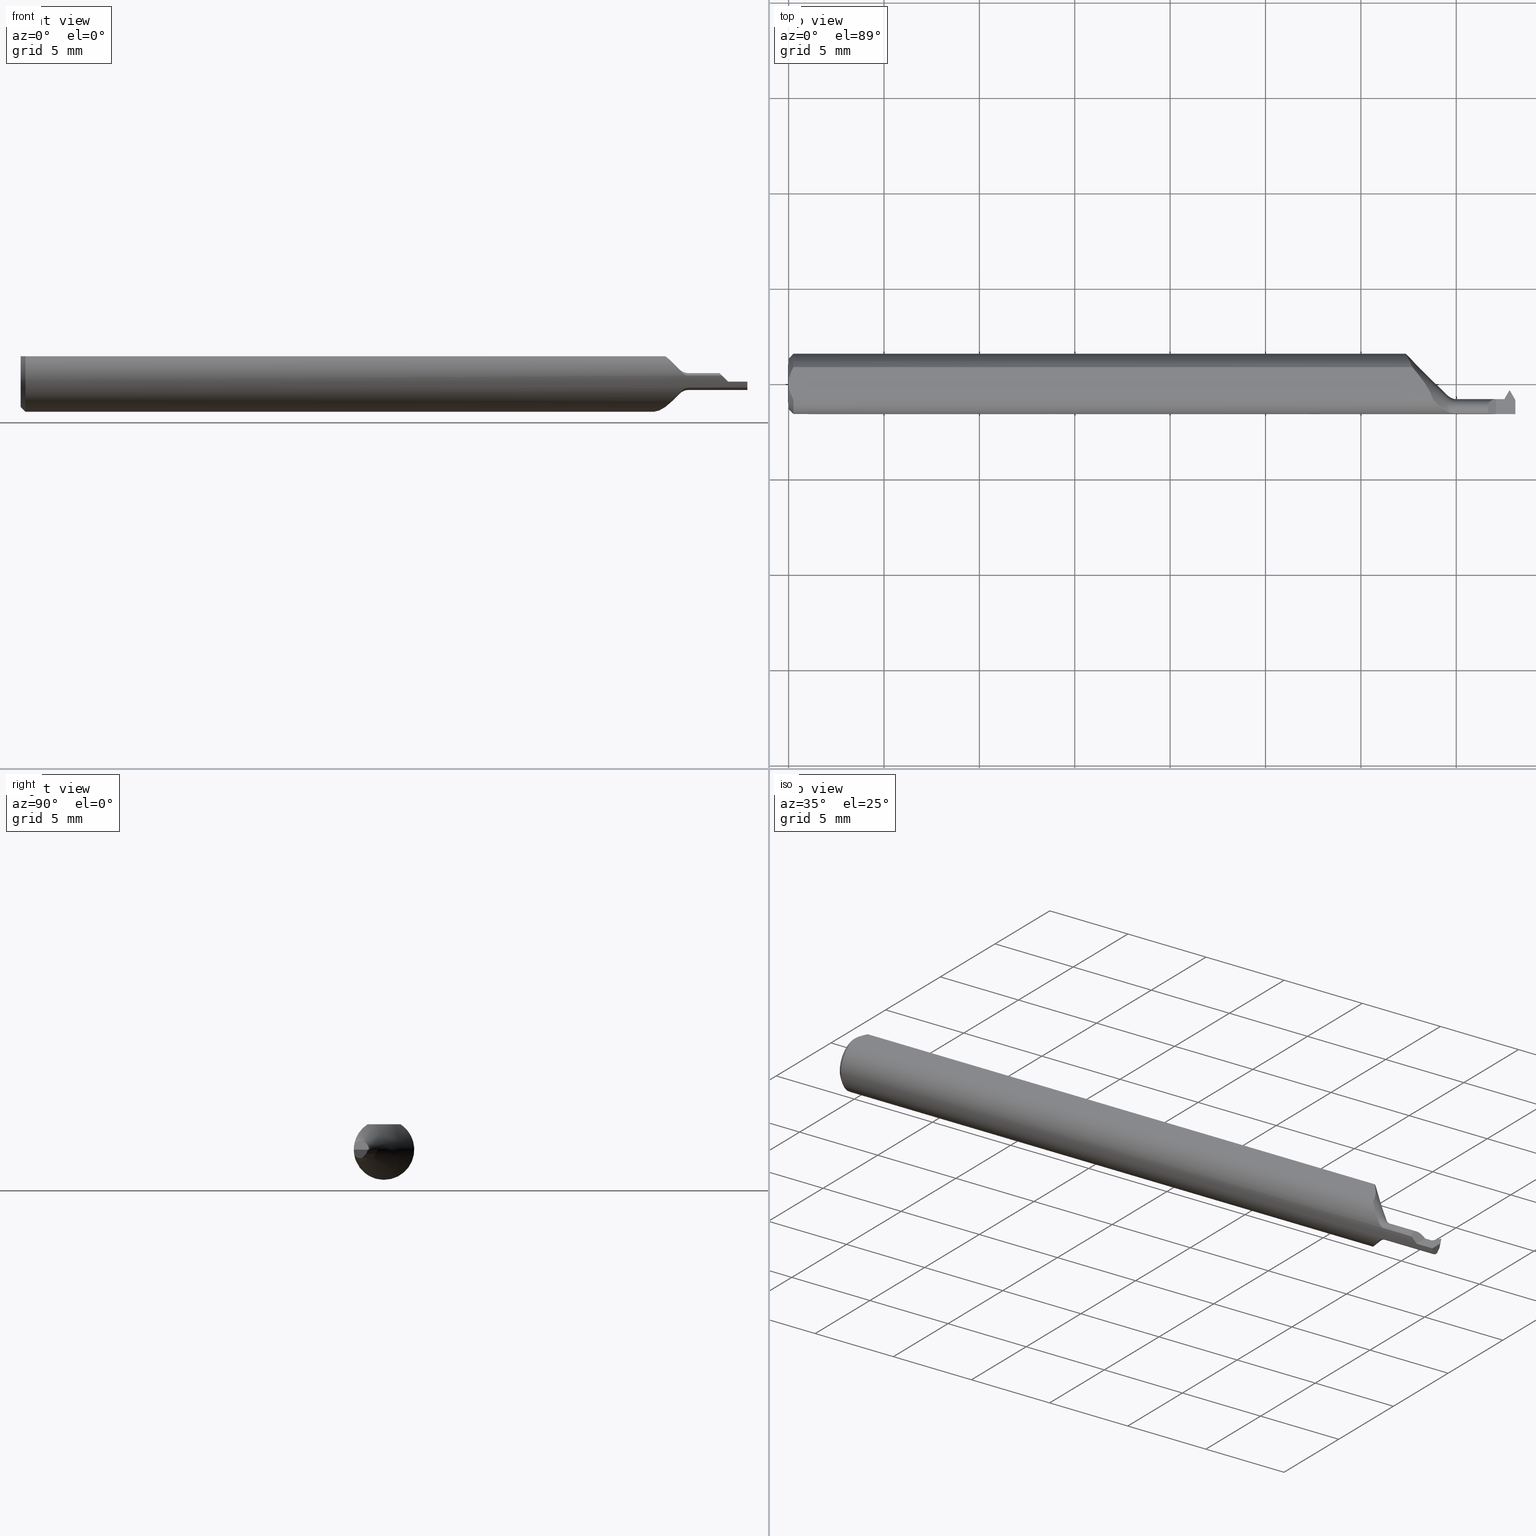
[diagram: canonical four-view strip — front | top / right | iso, engineering-drawing reading convention]
A machine part, canonical four-view strip (front | top / right | iso — engineering-drawing reading convention). The complete STEP part file that produces these views, byte-faithful:
ISO-10303-21;
HEADER;
FILE_DESCRIPTION (( 'STEP AP203' ),
    '1' );
FILE_NAME ('230010-TT050100.STEP',
    '2025-04-28T22:36:59',
    ( '' ),
    ( '' ),
    'SwSTEP 2.0',
    'SolidWorks 2024',
    '' );
FILE_SCHEMA (( 'CONFIG_CONTROL_DESIGN' ));
ENDSEC;

DATA;
#1 = CARTESIAN_POINT ( 'NONE',  ( 1.500000000000000222, 0.000000000000000000, 0.000000000000000000 ) ) ;
#2 = CARTESIAN_POINT ( 'NONE',  ( 1.467232981265880642, -0.03134999999999998899, 0.000000000000000000 ) ) ;
#3 = AXIS2_PLACEMENT_3D ( 'NONE', #442, #261, #137 ) ;
#4 = AXIS2_PLACEMENT_3D ( 'NONE', #243, #623, #494 ) ;
#5 =( BOUNDED_CURVE ( )  B_SPLINE_CURVE ( 3, ( #645, #266, #31, #510 ),
 .UNSPECIFIED., .F., .F. ) 
 B_SPLINE_CURVE_WITH_KNOTS ( ( 4, 4 ),
 ( 5.509322276528115125, 7.853981633974482790 ),
 .UNSPECIFIED. ) 
 CURVE ( )  GEOMETRIC_REPRESENTATION_ITEM ( )  RATIONAL_B_SPLINE_CURVE ( ( 1.000000000000000000, 0.5920037162779643314, 0.5920037162779643314, 1.000000000000000000 ) ) 
 REPRESENTATION_ITEM ( '' )  );
#6 = LINE ( 'NONE', #183, #47 ) ;
#7 = EDGE_CURVE ( 'NONE', #369, #409, #245, .T. ) ;
#8 = CARTESIAN_POINT ( 'NONE',  ( 1.479317018840704767, -0.04160882756742076416, -0.01750000000000004677 ) ) ;
#9 = ORIENTED_EDGE ( 'NONE', *, *, #310, .F. ) ;
#10 = FACE_OUTER_BOUND ( 'NONE', #587, .T. ) ;
#11 = DIRECTION ( 'NONE',  ( 8.471781335995639623E-16, -0.9799247046208295897, 0.1993679344171976342 ) ) ;
#12 = CARTESIAN_POINT ( 'NONE',  ( 0.000000000000000000, 0.000000000000000000, 0.000000000000000000 ) ) ;
#13 = DIRECTION ( 'NONE',  ( 0.000000000000000000, -7.317449983029258038E-15, -1.000000000000000000 ) ) ;
#14 = CARTESIAN_POINT ( 'NONE',  ( 1.477107695154586953, -0.03134999999999997511, 0.000000000000000000 ) ) ;
#15 = ORIENTED_EDGE ( 'NONE', *, *, #174, .T. ) ;
#16 = CARTESIAN_POINT ( 'NONE',  ( 1.287253451677763394, 0.03386738844375224849, 0.05234999999999997294 ) ) ;
#17 = AXIS2_PLACEMENT_3D ( 'NONE', #452, #273, #761 ) ;
#18 = VECTOR ( 'NONE', #387, 39.37007874015748854 ) ;
#19 = DIRECTION ( 'NONE',  ( 0.000000000000000000, -0.1993679344171976064, -0.9799247046208294787 ) ) ;
#20 = EDGE_CURVE ( 'NONE', #228, #22, #737, .T. ) ;
#21 = PRODUCT ( '230010-TT050100', '230010-TT050100', '', ( #757 ) ) ;
#22 = VERTEX_POINT ( 'NONE', #556 ) ;
#23 = APPROVAL_ROLE ( '' ) ;
#24 = DIRECTION ( 'NONE',  ( -1.000000000000000000, -0.000000000000000000, -0.000000000000000000 ) ) ;
#25 = CARTESIAN_POINT ( 'NONE',  ( 1.478226333658541281, -0.03613059952342619063, -0.01205599685795153038 ) ) ;
#26 = B_SPLINE_CURVE_WITH_KNOTS ( 'NONE', 3,
 ( #314, #686, #187, #194, #118, #498, #742, #16 ),
 .UNSPECIFIED., .F., .F.,
 ( 4, 2, 2, 4 ),
 ( 0.001782749369705200187, 0.002291746602842736555, 0.002800743835980272489, 0.003818738302255333516 ),
 .UNSPECIFIED. ) ;
#27 = DIRECTION ( 'NONE',  ( -1.000000000000000000, 7.628429393907824443E-17, -0.000000000000000000 ) ) ;
#28 = ORIENTED_EDGE ( 'NONE', *, *, #486, .T. ) ;
#29 = COORDINATED_UNIVERSAL_TIME_OFFSET ( 8, 0, .BEHIND. ) ;
#30 = CARTESIAN_POINT ( 'NONE',  ( -1.133440131013889109E-15, 0.005954997531774002505, 0.05234999999999997294 ) ) ;
#31 = CARTESIAN_POINT ( 'NONE',  ( 1.441836828026979989, -0.03134999999999997511, 0.01816317197301955261 ) ) ;
#32 = ORIENTED_EDGE ( 'NONE', *, *, #529, .T. ) ;
#33 = VECTOR ( 'NONE', #242, 39.37007874015748143 ) ;
#34 = LINE ( 'NONE', #759, #738 ) ;
#35 = EDGE_CURVE ( 'NONE', #355, #228, #179, .T. ) ;
#36 = AXIS2_PLACEMENT_3D ( 'NONE', #572, #491, #684 ) ;
#37 = PLANE ( 'NONE',  #17 ) ;
#38 = EDGE_LOOP ( 'NONE', ( #65, #628, #659, #401, #333, #668 ) ) ;
#39 = COORDINATED_UNIVERSAL_TIME_OFFSET ( 8, 0, .BEHIND. ) ;
#40 = B_SPLINE_CURVE_WITH_KNOTS ( 'NONE', 3,
 ( #552, #353, #606, #50, #290, #226 ),
 .UNSPECIFIED., .F., .F.,
 ( 4, 2, 4 ),
 ( 0.002189598257423874383, 0.002641492532680540361, 0.003093386807937206339 ),
 .UNSPECIFIED. ) ;
#41 = CARTESIAN_POINT ( 'NONE',  ( 1.459999999999999964, -0.06235000000000005121, 4.898587196589446663E-18 ) ) ;
#42 = ORIENTED_EDGE ( 'NONE', *, *, #413, .F. ) ;
#43 = PERSON_AND_ORGANIZATION ( #754, #691 ) ;
#44 = CYLINDRICAL_SURFACE ( 'NONE', #559, 0.06235000000000000264 ) ;
#45 = ORIENTED_EDGE ( 'NONE', *, *, #495, .F. ) ;
#46 = CARTESIAN_POINT ( 'NONE',  ( 1.324061247341834946, -0.02612594253902928570, -0.05678370293744689629 ) ) ;
#47 = VECTOR ( 'NONE', #794, 39.37007874015748143 ) ;
#48 = EDGE_LOOP ( 'NONE', ( #398, #631, #15, #562 ) ) ;
#49 = EDGE_CURVE ( 'NONE', #156, #369, #677, .T. ) ;
#50 = CARTESIAN_POINT ( 'NONE',  ( 0.001055043921632921322, -0.01186408073210964975, 0.05234999999999997988 ) ) ;
#51 = ORIENTED_EDGE ( 'NONE', *, *, #413, .T. ) ;
#52 = EDGE_CURVE ( 'NONE', #439, #731, #338, .T. ) ;
#53 = CARTESIAN_POINT ( 'NONE',  ( 1.378000000000000114, -0.06108080859774815685, 0.01251628223735995644 ) ) ;
#54 = EDGE_LOOP ( 'NONE', ( #246, #511, #537, #612 ) ) ;
#55 = DIRECTION ( 'NONE',  ( 0.000000000000000000, 0.3768974211598614121, 0.9262550048032377470 ) ) ;
#56 = EDGE_CURVE ( 'NONE', #420, #214, #364, .T. ) ;
#57 = ORIENTED_EDGE ( 'NONE', *, *, #443, .F. ) ;
#58 = VECTOR ( 'NONE', #660, 39.37007874015748854 ) ;
#59 = CARTESIAN_POINT ( 'NONE',  ( 1.287253451677763394, 0.03386738844375224849, 0.05234999999999997294 ) ) ;
#60 = CARTESIAN_POINT ( 'NONE',  ( 1.466753340220743107, -0.03134999999999997511, -0.002357511055398511801 ) ) ;
#61 = FACE_OUTER_BOUND ( 'NONE', #186, .T. ) ;
#62 = CARTESIAN_POINT ( 'NONE',  ( 1.477910884679110692, -0.03274116506458227271, -0.006837794748562220359 ) ) ;
#63 = ORIENTED_EDGE ( 'NONE', *, *, #370, .F. ) ;
#64 = LINE ( 'NONE', #509, #323 ) ;
#65 = ORIENTED_EDGE ( 'NONE', *, *, #7, .F. ) ;
#66 = AXIS2_PLACEMENT_3D ( 'NONE', #1, #428, #368 ) ;
#67 = EDGE_CURVE ( 'NONE', #582, #478, #110, .T. ) ;
#68 = DIRECTION ( 'NONE',  ( -1.000000000000000000, 0.000000000000000000, 1.224646799147358138E-16 ) ) ;
#69 = DIRECTION ( 'NONE',  ( 0.7745966692414820720, 0.4472135954999599816, -0.4472135954999583718 ) ) ;
#70 = ORIENTED_EDGE ( 'NONE', *, *, #418, .F. ) ;
#71 =( NAMED_UNIT ( * ) PLANE_ANGLE_UNIT ( ) SI_UNIT ( $, .RADIAN. ) );
#72 = ORIENTED_EDGE ( 'NONE', *, *, #500, .T. ) ;
#73 = DIRECTION ( 'NONE',  ( 1.000000000000000000, 8.645339071509271315E-16, -0.000000000000000000 ) ) ;
#74 = ADVANCED_FACE ( 'NONE', ( #748 ), #373, .T. ) ;
#75 = DIRECTION ( 'NONE',  ( -0.4999999999999983902, -0.8660254037844394848, 1.360387619964119377E-17 ) ) ;
#76 = EDGE_LOOP ( 'NONE', ( #318, #148, #469, #70 ) ) ;
#77 = CALENDAR_DATE ( 2025, 28, 4 ) ;
#78 = VECTOR ( 'NONE', #585, 39.37007874015748143 ) ;
#79 = FACE_OUTER_BOUND ( 'NONE', #706, .T. ) ;
#80 = CARTESIAN_POINT ( 'NONE',  ( 1.362456224277631245, -0.05899317650530151724, 0.02039327012283555923 ) ) ;
#81 = ORIENTED_EDGE ( 'NONE', *, *, #67, .T. ) ;
#82 = APPROVAL_STATUS ( 'not_yet_approved' ) ;
#83 = CARTESIAN_POINT ( 'NONE',  ( 0.004671770759546750584, 0.02323517832780109052, 0.05234999999999998682 ) ) ;
#84 = CARTESIAN_POINT ( 'NONE',  ( 1.287253451677763394, 0.03386738844375224849, 0.05234999999999997294 ) ) ;
#85 = CARTESIAN_POINT ( 'NONE',  ( 1.459999999999999964, -0.03134999999999997511, 1.710558109018646842E-17 ) ) ;
#86 = ORIENTED_EDGE ( 'NONE', *, *, #388, .F. ) ;
#87 = PLANE ( 'NONE',  #679 ) ;
#88 = PLANE ( 'NONE',  #180 ) ;
#89 = CARTESIAN_POINT ( 'NONE',  ( 1.365005209892370397, -0.05976161622093305315, -0.01789465587661732970 ) ) ;
#90 = EDGE_LOOP ( 'NONE', ( #166, #417, #551, #129, #32, #571 ) ) ;
#91 = APPROVAL_STATUS ( 'not_yet_approved' ) ;
#92 = EDGE_CURVE ( 'NONE', #472, #298, #237, .T. ) ;
#93 = AXIS2_PLACEMENT_3D ( 'NONE', #634, #695, #459 ) ;
#94 = LINE ( 'NONE', #532, #437 ) ;
#95 = CARTESIAN_POINT ( 'NONE',  ( 1.447483717762639843, -0.06108080859774818461, 0.01251628223735992869 ) ) ;
#96 = VECTOR ( 'NONE', #661, 39.37007874015748143 ) ;
#97 = ORIENTED_EDGE ( 'NONE', *, *, #646, .T. ) ;
#98 = CARTESIAN_POINT ( 'NONE',  ( 1.488485043535098695, -0.02548623603251626291, -0.01750000000000001554 ) ) ;
#99 = CARTESIAN_POINT ( 'NONE',  ( 1.487496468395576699, -0.01249139154258780728, 0.002125130505173009141 ) ) ;
#100 = VERTEX_POINT ( 'NONE', #493 ) ;
#101 = DIRECTION ( 'NONE',  ( 0.000000000000000000, 0.000000000000000000, 1.000000000000000000 ) ) ;
#102 = EDGE_CURVE ( 'NONE', #337, #723, #127, .T. ) ;
#103 = EDGE_LOOP ( 'NONE', ( #235, #414, #531, #113 ) ) ;
#104 = LINE ( 'NONE', #287, #592 ) ;
#105 = CIRCLE ( 'NONE', #285, 0.06235000000000000264 ) ;
#106 = CIRCLE ( 'NONE', #36, 0.06235000000000000264 ) ;
#107 = ORIENTED_EDGE ( 'NONE', *, *, #56, .T. ) ;
#108 = CARTESIAN_POINT ( 'NONE',  ( 1.275712760655050904, 0.05835260926307878765, -0.02261421930734408559 ) ) ;
#109 = EDGE_LOOP ( 'NONE', ( #204, #289, #51, #567 ) ) ;
#110 =( BOUNDED_CURVE ( )  B_SPLINE_CURVE ( 3, ( #614, #429, #60, #2 ),
 .UNSPECIFIED., .F., .T. ) 
 B_SPLINE_CURVE_WITH_KNOTS ( ( 4, 4 ),
 ( 1.169370598836196873, 1.570796326794896780 ),
 .UNSPECIFIED. ) 
 CURVE ( )  GEOMETRIC_REPRESENTATION_ITEM ( )  RATIONAL_B_SPLINE_CURVE ( ( 1.000000000000000000, 0.9866164697472195044, 0.9866164697472195044, 1.000000000000000000 ) ) 
 REPRESENTATION_ITEM ( '' )  );
#111 = EDGE_CURVE ( 'NONE', #313, #210, #196, .T. ) ;
#112 = FACE_OUTER_BOUND ( 'NONE', #48, .T. ) ;
#113 = ORIENTED_EDGE ( 'NONE', *, *, #588, .T. ) ;
#114 = CARTESIAN_POINT ( 'NONE',  ( 0.009999999999999887451, 0.000000000000000000, -0.06235000000000000264 ) ) ;
#115 = CC_DESIGN_PERSON_AND_ORGANIZATION_ASSIGNMENT ( #211, #447, ( #622 ) ) ;
#116 = VERTEX_POINT ( 'NONE', #753 ) ;
#117 = VECTOR ( 'NONE', #184, 39.37007874015748854 ) ;
#118 = CARTESIAN_POINT ( 'NONE',  ( 1.315940729725910252, -0.003415696435723368160, 0.05234999999999997294 ) ) ;
#119 = DIRECTION ( 'NONE',  ( -1.000000000000000000, -0.000000000000000000, -0.000000000000000000 ) ) ;
#120 = DIRECTION ( 'NONE',  ( -0.000000000000000000, 1.000000000000000000, -0.000000000000000000 ) ) ;
#121 = DIRECTION ( 'NONE',  ( -1.000000000000000000, -0.000000000000000000, -0.000000000000000000 ) ) ;
#122 = LINE ( 'NONE', #569, #160 ) ;
#123 = EDGE_CURVE ( 'NONE', #546, #214, #5, .T. ) ;
#124 = CARTESIAN_POINT ( 'NONE',  ( 1.378000000000000114, -0.06108080859774815685, -0.01251628223735995644 ) ) ;
#125 = UNCERTAINTY_MEASURE_WITH_UNIT (LENGTH_MEASURE( 1.000000000000000082E-05 ), #133, 'distance_accuracy_value', 'NONE');
#126 = CARTESIAN_POINT ( 'NONE',  ( 0.000000000000000000, 0.000000000000000000, -0.05235000000000033377 ) ) ;
#127 = B_SPLINE_CURVE_WITH_KNOTS ( 'NONE', 3,
 ( #124, #530, #506, #89, #141, #198 ),
 .UNSPECIFIED., .F., .F.,
 ( 4, 2, 4 ),
 ( 1.961994360720521054E-07, 0.0002730078589434167965, 0.0005458195184507616104 ),
 .UNSPECIFIED. ) ;
#128 = CARTESIAN_POINT ( 'NONE',  ( 0.000000000000000000, 0.000000000000000000, 0.000000000000000000 ) ) ;
#129 = ORIENTED_EDGE ( 'NONE', *, *, #238, .F. ) ;
#130 = ADVANCED_FACE ( 'NONE', ( #147 ), #151, .F. ) ;
#131 = ORIENTED_EDGE ( 'NONE', *, *, #343, .F. ) ;
#132 = CIRCLE ( 'NONE', #786, 0.02482233047033629431 ) ;
#133 =( CONVERSION_BASED_UNIT ( 'INCH', #508 ) LENGTH_UNIT ( ) NAMED_UNIT ( #315 ) );
#134 = DIRECTION ( 'NONE',  ( -1.000000000000000000, -0.000000000000000000, -0.000000000000000000 ) ) ;
#135 = ADVANCED_FACE ( 'NONE', ( #581 ), #698, .T. ) ;
#136 = DIRECTION ( 'NONE',  ( 1.000000000000000000, 0.000000000000000000, 0.000000000000000000 ) ) ;
#137 = DIRECTION ( 'NONE',  ( -0.4999999999999983902, -0.8660254037844394848, 0.000000000000000000 ) ) ;
#138 = DATE_AND_TIME ( #763, #145 ) ;
#139 = APPROVAL ( #82, 'UNSPECIFIED' ) ;
#140 = CARTESIAN_POINT ( 'NONE',  ( 1.488485043535098695, -0.01698623603251984970, -0.009000000000003498257 ) ) ;
#141 = CARTESIAN_POINT ( 'NONE',  ( 1.362455560994939807, -0.05899283946902385972, -0.02039411465581082022 ) ) ;
#142 = ORIENTED_EDGE ( 'NONE', *, *, #293, .F. ) ;
#143 = DATE_TIME_ROLE ( 'classification_date' ) ;
#144 = VECTOR ( 'NONE', #399, 39.37007874015748854 ) ;
#145 = LOCAL_TIME ( 15, 36, 59.00000000000000000, #29 ) ;
#146 = DIRECTION ( 'NONE',  ( 0.000000000000000000, -0.7071067811865516806, 0.7071067811865433539 ) ) ;
#147 = FACE_OUTER_BOUND ( 'NONE', #349, .T. ) ;
#148 = ORIENTED_EDGE ( 'NONE', *, *, #111, .F. ) ;
#149 = CALENDAR_DATE ( 2025, 28, 4 ) ;
#150 = PLANE ( 'NONE',  #657 ) ;
#151 = PLANE ( 'NONE',  #93 ) ;
#152 = ORIENTED_EDGE ( 'NONE', *, *, #448, .F. ) ;
#153 = PERSON_AND_ORGANIZATION ( #754, #691 ) ;
#154 = CARTESIAN_POINT ( 'NONE',  ( 1.478164864313142646, -0.03318107069481324861, -0.008999999999999810235 ) ) ;
#155 = FACE_OUTER_BOUND ( 'NONE', #109, .T. ) ;
#156 = VERTEX_POINT ( 'NONE', #383 ) ;
#157 = PERSON_AND_ORGANIZATION ( #754, #691 ) ;
#158 = CARTESIAN_POINT ( 'NONE',  ( 1.467232981265880642, -0.03134999999999998899, 0.000000000000000000 ) ) ;
#159 = CARTESIAN_POINT ( 'NONE',  ( 1.500000000000000222, -0.04885000000000001841, 0.000000000000000000 ) ) ;
#160 = VECTOR ( 'NONE', #73, 39.37007874015748143 ) ;
#161 = ORIENTED_EDGE ( 'NONE', *, *, #608, .T. ) ;
#162 = CARTESIAN_POINT ( 'NONE',  ( 1.478164864313142646, -0.03318107069481324861, -0.008999999999999810235 ) ) ;
#163 = EDGE_CURVE ( 'NONE', #210, #790, #515, .T. ) ;
#164 = ORIENTED_EDGE ( 'NONE', *, *, #35, .T. ) ;
#165 = CARTESIAN_POINT ( 'NONE',  ( 1.327308089143396819, -0.03008542112412410791, -0.05478176896657324657 ) ) ;
#166 = ORIENTED_EDGE ( 'NONE', *, *, #49, .F. ) ;
#167 = CARTESIAN_POINT ( 'NONE',  ( 1.276697613269467624, 0.05614529015636074427, -0.02761977763396476770 ) ) ;
#168 = VECTOR ( 'NONE', #432, 39.37007874015748143 ) ;
#169 = CIRCLE ( 'NONE', #523, 0.01750000000000001554 ) ;
#170 = EDGE_CURVE ( 'NONE', #553, #210, #576, .T. ) ;
#171 = ORIENTED_EDGE ( 'NONE', *, *, #52, .F. ) ;
#172 = CARTESIAN_POINT ( 'NONE',  ( 1.286114260592217340, 0.03611629276998754717, -0.05106556953486436623 ) ) ;
#173 = VERTEX_POINT ( 'NONE', #389 ) ;
#174 = EDGE_CURVE ( 'NONE', #173, #647, #674, .T. ) ;
#175 = PLANE ( 'NONE',  #390 ) ;
#176 = DIRECTION ( 'NONE',  ( 0.000000000000000000, -1.000000000000000000, 0.000000000000000000 ) ) ;
#177 = CARTESIAN_POINT ( 'NONE',  ( 1.487514956464901505, -0.01698623603251294203, -0.008999999999996588854 ) ) ;
#178 = AXIS2_PLACEMENT_3D ( 'NONE', #603, #788, #299 ) ;
#179 = LINE ( 'NONE', #561, #479 ) ;
#180 = AXIS2_PLACEMENT_3D ( 'NONE', #760, #335, #722 ) ;
#181 = FACE_OUTER_BOUND ( 'NONE', #185, .T. ) ;
#182 = ORIENTED_EDGE ( 'NONE', *, *, #310, .T. ) ;
#183 = CARTESIAN_POINT ( 'NONE',  ( 1.487500000000000266, -0.01334999999999999555, 0.000000000000000000 ) ) ;
#184 = DIRECTION ( 'NONE',  ( 0.4999999999999983902, 0.8660254037844394848, 0.000000000000000000 ) ) ;
#185 = EDGE_LOOP ( 'NONE', ( #284, #475 ) ) ;
#186 = EDGE_LOOP ( 'NONE', ( #485, #396, #778, #57, #461 ) ) ;
#187 = CARTESIAN_POINT ( 'NONE',  ( 1.326064074130062664, -0.02100907905298101536, 0.05234999999999997294 ) ) ;
#188 =( BOUNDED_CURVE ( )  B_SPLINE_CURVE ( 3, ( #208, #656, #282, #276 ),
 .UNSPECIFIED., .F., .F. ) 
 B_SPLINE_CURVE_WITH_KNOTS ( ( 4, 4 ),
 ( 4.712388980384689674, 4.914504563857411412 ),
 .UNSPECIFIED. ) 
 CURVE ( )  GEOMETRIC_REPRESENTATION_ITEM ( )  RATIONAL_B_SPLINE_CURVE ( ( 1.000000000000000000, 0.9965986704452858280, 0.9965986704452858280, 1.000000000000000000 ) ) 
 REPRESENTATION_ITEM ( '' )  );
#189 = PLANE ( 'NONE',  #230 ) ;
#190 = ORIENTED_EDGE ( 'NONE', *, *, #327, .F. ) ;
#191 = ADVANCED_FACE ( 'NONE', ( #710 ), #451, .T. ) ;
#192 = ORIENTED_EDGE ( 'NONE', *, *, #789, .T. ) ;
#193 = VECTOR ( 'NONE', #545, 39.37007874015748143 ) ;
#194 = CARTESIAN_POINT ( 'NONE',  ( 1.319590123793896064, -0.009075655482202656457, 0.05235000000000000070 ) ) ;
#195 = FACE_OUTER_BOUND ( 'NONE', #223, .T. ) ;
#196 = LINE ( 'NONE', #321, #296 ) ;
#197 = LINE ( 'NONE', #158, #574 ) ;
#198 = CARTESIAN_POINT ( 'NONE',  ( 1.360322330470336682, -0.05790887318343310858, -0.02311027707806772441 ) ) ;
#199 = ORIENTED_EDGE ( 'NONE', *, *, #277, .F. ) ;
#200 = APPROVAL_DATE_TIME ( #138, #139 ) ;
#201 = DIRECTION ( 'NONE',  ( -1.000000000000000000, 7.628429393907824443E-17, -0.000000000000000000 ) ) ;
#202 = CARTESIAN_POINT ( 'NONE',  ( 1.357101827099947089, -0.05627242694104554049, -0.02721082323776138553 ) ) ;
#203 = CARTESIAN_POINT ( 'NONE',  ( 1.523577656103213718, 0.03697619199913675103, -0.01750000000000001901 ) ) ;
#204 = ORIENTED_EDGE ( 'NONE', *, *, #588, .F. ) ;
#205 = PERSON_AND_ORGANIZATION ( #754, #691 ) ;
#206 = VECTOR ( 'NONE', #347, 39.37007874015748854 ) ;
#207 = DIRECTION ( 'NONE',  ( -1.000000000000000000, 7.628429393907824443E-17, -0.000000000000000000 ) ) ;
#208 = CARTESIAN_POINT ( 'NONE',  ( 1.459999999999999964, -0.06235000000000005121, 4.898587196589446663E-18 ) ) ;
#209 = CARTESIAN_POINT ( 'NONE',  ( 1.378000000000000114, -0.06108080859774815685, 0.01251628223735995644 ) ) ;
#210 = VERTEX_POINT ( 'NONE', #336 ) ;
#211 = PERSON_AND_ORGANIZATION ( #754, #691 ) ;
#212 = CARTESIAN_POINT ( 'NONE',  ( 0.009999999999999887451, 0.03386738844375224849, 0.05234999999999997294 ) ) ;
#213 = DIRECTION ( 'NONE',  ( 0.000000000000000000, -1.000000000000000000, 0.000000000000000000 ) ) ;
#214 = VERTEX_POINT ( 'NONE', #85 ) ;
#215 = LINE ( 'NONE', #717, #58 ) ;
#216 = LINE ( 'NONE', #458, #78 ) ;
#217 = ORIENTED_EDGE ( 'NONE', *, *, #538, .F. ) ;
#218 = ADVANCED_FACE ( 'NONE', ( #591 ), #37, .F. ) ;
#219 = PERSON_AND_ORGANIZATION_ROLE ( 'classification_officer' ) ;
#220 = VECTOR ( 'NONE', #75, 39.37007874015748854 ) ;
#221 = DIRECTION ( 'NONE',  ( 0.000000000000000000, -0.3746065934159064637, -0.9271838545667896447 ) ) ;
#222 = VECTOR ( 'NONE', #747, 39.37007874015748143 ) ;
#223 = EDGE_LOOP ( 'NONE', ( #131, #182, #782, #97 ) ) ;
#224 =( BOUNDED_CURVE ( )  B_SPLINE_CURVE ( 3, ( #580, #272, #25, #528 ),
 .UNSPECIFIED., .F., .T. ) 
 B_SPLINE_CURVE_WITH_KNOTS ( ( 4, 4 ),
 ( 3.061262506316913878, 3.221922800862673242 ),
 .UNSPECIFIED. ) 
 CURVE ( )  GEOMETRIC_REPRESENTATION_ITEM ( )  RATIONAL_B_SPLINE_CURVE ( ( 1.000000000000000000, 0.9978501789070091110, 0.9978501789070091110, 1.000000000000000000 ) ) 
 REPRESENTATION_ITEM ( '' )  );
#225 = CARTESIAN_POINT ( 'NONE',  ( 1.337096239893140082, -0.04069963399170441892, -0.04742870361374623700 ) ) ;
#226 = CARTESIAN_POINT ( 'NONE',  ( 0.000000000000000000, 0.000000000000000000, 0.05234999999999997294 ) ) ;
#227 = ADVANCED_FACE ( 'NONE', ( #705 ), #743, .T. ) ;
#228 = VERTEX_POINT ( 'NONE', #690 ) ;
#229 = LINE ( 'NONE', #350, #193 ) ;
#230 = AXIS2_PLACEMENT_3D ( 'NONE', #423, #11, #19 ) ;
#231 = EDGE_CURVE ( 'NONE', #313, #100, #776, .T. ) ;
#232 = AXIS2_PLACEMENT_3D ( 'NONE', #489, #427, #683 ) ;
#233 = ORIENTED_EDGE ( 'NONE', *, *, #404, .T. ) ;
#234 = CARTESIAN_POINT ( 'NONE',  ( 1.279607297160832324, 0.04973386610369191774, 0.03908411801189477786 ) ) ;
#235 = ORIENTED_EDGE ( 'NONE', *, *, #404, .F. ) ;
#236 = FACE_OUTER_BOUND ( 'NONE', #641, .T. ) ;
#237 = LINE ( 'NONE', #488, #33 ) ;
#238 = EDGE_CURVE ( 'NONE', #516, #22, #105, .T. ) ;
#239 = CARTESIAN_POINT ( 'NONE',  ( 1.487514956464901061, -0.01698623603251677230, -0.008999999999999810235 ) ) ;
#240 = PLANE ( 'NONE',  #539 ) ;
#241 = CIRCLE ( 'NONE', #352, 0.01750000000000004330 ) ;
#242 = DIRECTION ( 'NONE',  ( 1.000000000000000000, 0.000000000000000000, 0.000000000000000000 ) ) ;
#243 = CARTESIAN_POINT ( 'NONE',  ( 1.630958352158234037, 0.06235000000000000264, 0.05234999999999997294 ) ) ;
#244 = DIRECTION ( 'NONE',  ( 0.7071067811865550112, 0.000000000000000000, -0.7071067811865400232 ) ) ;
#245 = LINE ( 'NONE', #303, #168 ) ;
#246 = ORIENTED_EDGE ( 'NONE', *, *, #716, .T. ) ;
#247 = PLANE ( 'NONE',  #470 ) ;
#248 = LINE ( 'NONE', #681, #222 ) ;
#249 = ADVANCED_FACE ( 'NONE', ( #181 ), #240, .F. ) ;
#250 = DIRECTION ( 'NONE',  ( -1.000000000000000000, -0.000000000000000000, -0.000000000000000000 ) ) ;
#251 = CARTESIAN_POINT ( 'NONE',  ( 1.487500000000000266, -0.01334999999999999555, 0.000000000000000000 ) ) ;
#252 = CARTESIAN_POINT ( 'NONE',  ( 1.378000000000000114, -0.06108080859774815685, -0.01251628223735995644 ) ) ;
#253 = ORIENTED_EDGE ( 'NONE', *, *, #370, .T. ) ;
#254 = AXIS2_PLACEMENT_3D ( 'NONE', #441, #136, #382 ) ;
#255 = CC_DESIGN_APPROVAL ( #139, ( #622 ) ) ;
#256 = CARTESIAN_POINT ( 'NONE',  ( 1.500000000000000222, 0.000000000000000000, 0.000000000000000000 ) ) ;
#257 = DIRECTION ( 'NONE',  ( -0.1027016844786580591, 0.6087793493571991288, 0.7866638848971466702 ) ) ;
#258 = ORIENTED_EDGE ( 'NONE', *, *, #388, .T. ) ;
#259 = DIRECTION ( 'NONE',  ( 1.000000000000000000, 0.000000000000000000, 0.000000000000000000 ) ) ;
#260 = LINE ( 'NONE', #595, #96 ) ;
#261 = DIRECTION ( 'NONE',  ( -0.7745966692414852917, 0.4472135954999571505, -0.4472135954999553742 ) ) ;
#262 = ORIENTED_EDGE ( 'NONE', *, *, #460, .T. ) ;
#263 = COORDINATED_UNIVERSAL_TIME_OFFSET ( 8, 0, .BEHIND. ) ;
#264 = EDGE_CURVE ( 'NONE', #472, #711, #106, .T. ) ;
#265 = CARTESIAN_POINT ( 'NONE',  ( 0.007185421074056196067, 0.02868573718286566293, 0.05234999999999997294 ) ) ;
#266 = CARTESIAN_POINT ( 'NONE',  ( 1.434789416052355104, -0.04809021506974720667, 0.02521058394764480112 ) ) ;
#267 = ORIENTED_EDGE ( 'NONE', *, *, #123, .T. ) ;
#268 = VECTOR ( 'NONE', #120, 39.37007874015748143 ) ;
#269 = VECTOR ( 'NONE', #768, 39.37007874015748854 ) ;
#270 = ADVANCED_FACE ( 'NONE', ( #626 ), #189, .F. ) ;
#271 = DIRECTION ( 'NONE',  ( 0.000000000000000000, 0.000000000000000000, -1.000000000000000000 ) ) ;
#272 = CARTESIAN_POINT ( 'NONE',  ( 1.478226333658541281, -0.03679400314204844119, -0.01271940047657377920 ) ) ;
#273 = DIRECTION ( 'NONE',  ( -0.000000000000000000, 1.963550396471289392E-17, 1.000000000000000000 ) ) ;
#274 = ORIENTED_EDGE ( 'NONE', *, *, #231, .F. ) ;
#275 = CARTESIAN_POINT ( 'NONE',  ( 0.000000000000000000, 0.000000000000000000, 0.000000000000000000 ) ) ;
#276 = CARTESIAN_POINT ( 'NONE',  ( 1.447483717762639843, -0.06108080859774818461, 0.01251628223735992869 ) ) ;
#277 = EDGE_CURVE ( 'NONE', #790, #766, #740, .T. ) ;
#278 = ORIENTED_EDGE ( 'NONE', *, *, #123, .F. ) ;
#279 = PERSON_AND_ORGANIZATION ( #754, #691 ) ;
#280 = ADVANCED_BREP_SHAPE_REPRESENTATION ( '230010-TT050100', ( #735, #232 ), #752 ) ;
#281 = DIRECTION ( 'NONE',  ( 0.1955200734030768106, 0.1955200734030769494, 0.9610118635026889677 ) ) ;
#282 = CARTESIAN_POINT ( 'NONE',  ( 1.451605865465561029, -0.06192549230869275056, 0.008394134534439203973 ) ) ;
#283 = EDGE_CURVE ( 'NONE', #22, #420, #248, .T. ) ;
#284 = ORIENTED_EDGE ( 'NONE', *, *, #52, .T. ) ;
#285 = AXIS2_PLACEMENT_3D ( 'NONE', #256, #620, #560 ) ;
#286 = CIRCLE ( 'NONE', #374, 0.06235000000000000264 ) ;
#287 = CARTESIAN_POINT ( 'NONE',  ( 1.477107695154586953, -0.03134999999999997511, -1.399794715961899575E-19 ) ) ;
#288 = CC_DESIGN_SECURITY_CLASSIFICATION ( #525, ( #729 ) ) ;
#289 = ORIENTED_EDGE ( 'NONE', *, *, #601, .T. ) ;
#290 = CARTESIAN_POINT ( 'NONE',  ( -1.104610997828796865E-15, -0.005965286321680308458, 0.05234999999999996600 ) ) ;
#291 = ORIENTED_EDGE ( 'NONE', *, *, #629, .F. ) ;
#292 = CARTESIAN_POINT ( 'NONE',  ( 1.284172246949123686, 0.04010775790294555943, -0.04801607269110307746 ) ) ;
#293 = EDGE_CURVE ( 'NONE', #116, #313, #64, .T. ) ;
#294 = ORIENTED_EDGE ( 'NONE', *, *, #264, .T. ) ;
#295 = FACE_OUTER_BOUND ( 'NONE', #483, .T. ) ;
#296 = VECTOR ( 'NONE', #445, 39.37007874015748854 ) ;
#297 = AXIS2_PLACEMENT_3D ( 'NONE', #775, #663, #213 ) ;
#298 = VERTEX_POINT ( 'NONE', #365 ) ;
#299 = DIRECTION ( 'NONE',  ( -7.628429393907824443E-17, -1.000000000000000000, 0.000000000000000000 ) ) ;
#300 = EDGE_CURVE ( 'NONE', #553, #409, #694, .T. ) ;
#301 = DIRECTION ( 'NONE',  ( 0.000000000000000000, 0.000000000000000000, -1.000000000000000000 ) ) ;
#302 = DIRECTION ( 'NONE',  ( 0.000000000000000000, 0.000000000000000000, -1.000000000000000000 ) ) ;
#303 = CARTESIAN_POINT ( 'NONE',  ( 1.544538834529727067, -0.1225742499920585149, -0.01750000000000001554 ) ) ;
#304 = CARTESIAN_POINT ( 'NONE',  ( 1.500000000000000222, -0.2500000000000000555, 0.000000000000000000 ) ) ;
#305 = DIRECTION ( 'NONE',  ( 0.000000000000000000, 0.000000000000000000, -1.000000000000000000 ) ) ;
#306 = B_SPLINE_CURVE_WITH_KNOTS ( 'NONE', 3,
 ( #584, #697, #513, #527, #341, #536 ),
 .UNSPECIFIED., .F., .F.,
 ( 4, 2, 4 ),
 ( 4.548525278132585488E-07, 0.0006130143515065053766, 0.001225573850485197442 ),
 .UNSPECIFIED. ) ;
#307 = VECTOR ( 'NONE', #434, 39.37007874015748854 ) ;
#308 = CARTESIAN_POINT ( 'NONE',  ( 1.500000000000000222, 0.000000000000000000, 0.000000000000000000 ) ) ;
#309 = CARTESIAN_POINT ( 'NONE',  ( 1.360322330470336682, -0.05790887318343310858, -0.02311027707806772441 ) ) ;
#310 = EDGE_CURVE ( 'NONE', #731, #711, #379, .T. ) ;
#311 = DIRECTION ( 'NONE',  ( -0.5000000000000023315, 0.8660254037844373753, 0.000000000000000000 ) ) ;
#312 = ORIENTED_EDGE ( 'NONE', *, *, #418, .T. ) ;
#313 = VERTEX_POINT ( 'NONE', #496 ) ;
#314 = CARTESIAN_POINT ( 'NONE',  ( 1.330692836829395986, -0.03386738844375224849, 0.05234999999999997294 ) ) ;
#315 = DIMENSIONAL_EXPONENTS ( 1.000000000000000000, 0.000000000000000000, 0.000000000000000000, 0.000000000000000000, 0.000000000000000000, 0.000000000000000000, 0.000000000000000000 ) ;
#316 = EDGE_CURVE ( 'NONE', #602, #741, #630, .T. ) ;
#317 = DIRECTION ( 'NONE',  ( -1.000000000000000000, -0.000000000000000000, -0.000000000000000000 ) ) ;
#318 = ORIENTED_EDGE ( 'NONE', *, *, #163, .F. ) ;
#319 =( NAMED_UNIT ( * ) SI_UNIT ( $, .STERADIAN. ) SOLID_ANGLE_UNIT ( ) );
#320 = CARTESIAN_POINT ( 'NONE',  ( 1.478727648097309499, -0.03557051654074931679, -0.01350332911743745007 ) ) ;
#321 = CARTESIAN_POINT ( 'NONE',  ( 1.479584644318689302, -0.05327094646151198098, -0.01750000000000001554 ) ) ;
#322 = ORIENTED_EDGE ( 'NONE', *, *, #49, .T. ) ;
#323 = VECTOR ( 'NONE', #134, 39.37007874015748143 ) ;
#324 = APPROVAL_DATE_TIME ( #386, #549 ) ;
#325 = CARTESIAN_POINT ( 'NONE',  ( 0.000000000000000000, 0.000000000000000000, 0.05234999999999997294 ) ) ;
#326 = CARTESIAN_POINT ( 'NONE',  ( 1.370907247954247232, -0.06080279617227261207, 0.01395688338791106591 ) ) ;
#327 = EDGE_CURVE ( 'NONE', #478, #328, #122, .T. ) ;
#328 = VERTEX_POINT ( 'NONE', #14 ) ;
#329 = APPROVAL_ROLE ( '' ) ;
#330 = CARTESIAN_POINT ( 'NONE',  ( 1.500000000000000222, -0.04543072567666878864, -0.01750000000000001901 ) ) ;
#331 = CARTESIAN_POINT ( 'NONE',  ( 1.343777558969654340, -0.04681441024227128711, -0.04140474764091207210 ) ) ;
#332 = CARTESIAN_POINT ( 'NONE',  ( 1.364942088398638731, -0.05974776359960013578, 0.01794378335571891747 ) ) ;
#333 = ORIENTED_EDGE ( 'NONE', *, *, #170, .F. ) ;
#334 = DIRECTION ( 'NONE',  ( 0.000000000000000000, 0.000000000000000000, -1.000000000000000000 ) ) ;
#335 = DIRECTION ( 'NONE',  ( 0.9934405138748566566, 0.02279774325662349901, 0.1120544880603447507 ) ) ;
#336 = CARTESIAN_POINT ( 'NONE',  ( 1.479274568641545384, -0.03975900641664000673, -0.01750000000000001901 ) ) ;
#337 = VERTEX_POINT ( 'NONE', #252 ) ;
#338 = CIRCLE ( 'NONE', #719, 0.05235000000000033377 ) ;
#339 = VECTOR ( 'NONE', #435, 39.37007874015748143 ) ;
#340 = LOCAL_TIME ( 15, 36, 59.00000000000000000, #263 ) ;
#341 = CARTESIAN_POINT ( 'NONE',  ( 1.355520687460885387, -0.05546899663110580608, 0.02922402904108691024 ) ) ;
#342 = CARTESIAN_POINT ( 'NONE',  ( 1.465841816201298276, -0.03274116506458230047, -0.006837794748562353066 ) ) ;
#343 = EDGE_CURVE ( 'NONE', #731, #439, #424, .T. ) ;
#344 = ORIENTED_EDGE ( 'NONE', *, *, #617, .F. ) ;
#345 = PERSON_AND_ORGANIZATION_ROLE ( 'creator' ) ;
#346 = CARTESIAN_POINT ( 'NONE',  ( 0.001063697276021325104, 0.01189177144351695990, 0.05234999999999997988 ) ) ;
#347 = DIRECTION ( 'NONE',  ( -0.001540819590688185560, 0.3746061487342011165, 0.9271827539409468466 ) ) ;
#348 = ADVANCED_FACE ( 'NONE', ( #195 ), #505, .T. ) ;
#349 = EDGE_LOOP ( 'NONE', ( #278, #351, #107 ) ) ;
#350 = CARTESIAN_POINT ( 'NONE',  ( 1.500000000000000222, -3.436213193824759884E-19, -0.01750000000000001554 ) ) ;
#351 = ORIENTED_EDGE ( 'NONE', *, *, #500, .F. ) ;
#352 = AXIS2_PLACEMENT_3D ( 'NONE', #615, #121, #13 ) ;
#353 = CARTESIAN_POINT ( 'NONE',  ( 0.007163450771350382031, -0.02864528976618618133, 0.05234999999999997294 ) ) ;
#354 = LOCAL_TIME ( 15, 36, 59.00000000000000000, #578 ) ;
#355 = VERTEX_POINT ( 'NONE', #633 ) ;
#356 = ADVANCED_FACE ( 'NONE', ( #616 ), #555, .F. ) ;
#357 = CARTESIAN_POINT ( 'NONE',  ( 1.488485043535099139, -0.01698623603251638373, -0.008999999999999992381 ) ) ;
#358 = ORIENTED_EDGE ( 'NONE', *, *, #448, .T. ) ;
#359 = EDGE_LOOP ( 'NONE', ( #9, #171, #497, #721 ) ) ;
#360 = FACE_BOUND ( 'NONE', #593, .T. ) ;
#361 = VECTOR ( 'NONE', #257, 39.37007874015748854 ) ;
#362 = EDGE_CURVE ( 'NONE', #711, #741, #286, .T. ) ;
#363 = TOROIDAL_SURFACE ( 'NONE', #178, 0.04249999999999999611, 0.02499999999999992853 ) ;
#364 = LINE ( 'NONE', #501, #268 ) ;
#365 = CARTESIAN_POINT ( 'NONE',  ( 1.330692836829395986, -0.03386738844375224849, 0.05234999999999997294 ) ) ;
#366 = CARTESIAN_POINT ( 'NONE',  ( 0.000000000000000000, 0.000000000000000000, 0.000000000000000000 ) ) ;
#367 = CARTESIAN_POINT ( 'NONE',  ( 1.478164864313142646, -0.03318107069481324861, -0.008999999999999810235 ) ) ;
#368 = DIRECTION ( 'NONE',  ( -0.000000000000000000, 0.000000000000000000, 1.000000000000000000 ) ) ;
#369 = VERTEX_POINT ( 'NONE', #330 ) ;
#370 = EDGE_CURVE ( 'NONE', #618, #156, #649, .T. ) ;
#371 = PLANE ( 'NONE',  #4 ) ;
#372 = CARTESIAN_POINT ( 'NONE',  ( 1.487999999999999989, -0.01614611598584214658, -0.008999999999999810235 ) ) ;
#373 = CONICAL_SURFACE ( 'NONE', #436, 0.05235000000000033377, 0.7853981633974376209 ) ;
#374 = AXIS2_PLACEMENT_3D ( 'NONE', #598, #259, #334 ) ;
#375 = ORIENTED_EDGE ( 'NONE', *, *, #35, .F. ) ;
#376 = ORIENTED_EDGE ( 'NONE', *, *, #632, .F. ) ;
#377 = EDGE_CURVE ( 'NONE', #298, #173, #306, .T. ) ;
#378 = CARTESIAN_POINT ( 'NONE',  ( 1.478164864313142646, -0.03552256921811203921, -0.01134149852329861125 ) ) ;
#379 = LINE ( 'NONE', #431, #490 ) ;
#380 = DIRECTION ( 'NONE',  ( 1.000000000000000000, 0.000000000000000000, 0.000000000000000000 ) ) ;
#381 = FACE_OUTER_BOUND ( 'NONE', #635, .T. ) ;
#382 = DIRECTION ( 'NONE',  ( 0.000000000000000000, 0.000000000000000000, -1.000000000000000000 ) ) ;
#383 = CARTESIAN_POINT ( 'NONE',  ( 1.500000000000000222, -0.03693072567666861455, -0.008999999999999810235 ) ) ;
#384 = PRODUCT_DEFINITION_SHAPE ( 'NONE', 'NONE',  #622 ) ;
#385 = EDGE_LOOP ( 'NONE', ( #192, #692 ) ) ;
#386 = DATE_AND_TIME ( #456, #340 ) ;
#387 = DIRECTION ( 'NONE',  ( -0.1143501000964223663, 0.1980601832175893084, 0.9734969021171835379 ) ) ;
#388 = EDGE_CURVE ( 'NONE', #582, #478, #197, .T. ) ;
#389 = CARTESIAN_POINT ( 'NONE',  ( 1.360322330470336682, -0.05790887318343310858, 0.02311027707806772441 ) ) ;
#390 = AXIS2_PLACEMENT_3D ( 'NONE', #419, #676, #613 ) ;
#391 = VERTEX_POINT ( 'NONE', #405 ) ;
#392 = APPROVAL_STATUS ( 'not_yet_approved' ) ;
#393 = DIRECTION ( 'NONE',  ( 1.000000000000000000, -7.628429393907824443E-17, 0.000000000000000000 ) ) ;
#394 = CARTESIAN_POINT ( 'NONE',  ( 1.347145335385850240, -0.04954905416256632361, -0.03808608969188009147 ) ) ;
#395 = ADVANCED_FACE ( 'NONE', ( #79 ), #44, .T. ) ;
#396 = ORIENTED_EDGE ( 'NONE', *, *, #770, .T. ) ;
#397 = FACE_OUTER_BOUND ( 'NONE', #385, .T. ) ;
#398 = ORIENTED_EDGE ( 'NONE', *, *, #102, .T. ) ;
#399 = DIRECTION ( 'NONE',  ( 3.324326627410065852E-15, 0.7071067811865433539, 0.7071067811865516806 ) ) ;
#400 = FACE_OUTER_BOUND ( 'NONE', #76, .T. ) ;
#401 = ORIENTED_EDGE ( 'NONE', *, *, #111, .T. ) ;
#402 = DATE_AND_TIME ( #767, #787 ) ;
#403 = AXIS2_PLACEMENT_3D ( 'NONE', #783, #673, #416 ) ;
#404 = EDGE_CURVE ( 'NONE', #409, #618, #449, .T. ) ;
#405 = CARTESIAN_POINT ( 'NONE',  ( 1.478164864313142646, -0.03750850147670135859, -0.01332743078188793756 ) ) ;
#406 = DIRECTION ( 'NONE',  ( 0.000000000000000000, -0.9271838545667896447, 0.3746065934159064637 ) ) ;
#407 = EDGE_LOOP ( 'NONE', ( #291, #358, #258, #577 ) ) ;
#408 = DIRECTION ( 'NONE',  ( -0.4999999999999983902, -0.8660254037844394848, 0.000000000000000000 ) ) ;
#409 = VERTEX_POINT ( 'NONE', #98 ) ;
#410 = CARTESIAN_POINT ( 'NONE',  ( 1.317786535252882141, -0.01787687724439776527, -0.05989466631370112676 ) ) ;
#411 = ORIENTED_EDGE ( 'NONE', *, *, #617, .T. ) ;
#412 = CARTESIAN_POINT ( 'NONE',  ( 1.292791935424213667, 0.02301952229598921637, -0.05814226267403477949 ) ) ;
#413 = EDGE_CURVE ( 'NONE', #725, #355, #34, .T. ) ;
#414 = ORIENTED_EDGE ( 'NONE', *, *, #300, .F. ) ;
#415 = FACE_OUTER_BOUND ( 'NONE', #627, .T. ) ;
#416 = DIRECTION ( 'NONE',  ( 0.000000000000000000, -1.000000000000000000, 0.000000000000000000 ) ) ;
#417 = ORIENTED_EDGE ( 'NONE', *, *, #632, .T. ) ;
#418 = EDGE_CURVE ( 'NONE', #790, #100, #700, .T. ) ;
#419 = CARTESIAN_POINT ( 'NONE',  ( 1.467232981265880642, -0.03134999999999998899, 0.000000000000000000 ) ) ;
#420 = VERTEX_POINT ( 'NONE', #41 ) ;
#421 = CARTESIAN_POINT ( 'NONE',  ( 1.273842464512773054, 0.06258262008723719516, 0.009499717342791841324 ) ) ;
#422 = AXIS2_PLACEMENT_3D ( 'NONE', #372, #69, #311 ) ;
#423 = CARTESIAN_POINT ( 'NONE',  ( 1.477107695154586953, -0.03134999999999997511, 0.000000000000000000 ) ) ;
#424 = CIRCLE ( 'NONE', #480, 0.05235000000000033377 ) ;
#425 = CC_DESIGN_APPROVAL ( #477, ( #525 ) ) ;
#426 = ORIENTED_EDGE ( 'NONE', *, *, #67, .F. ) ;
#427 = DIRECTION ( 'NONE',  ( 0.000000000000000000, 0.000000000000000000, 1.000000000000000000 ) ) ;
#428 = DIRECTION ( 'NONE',  ( -1.000000000000000000, 0.000000000000000000, -0.000000000000000000 ) ) ;
#429 = CARTESIAN_POINT ( 'NONE',  ( 1.466283328111262385, -0.03182001210948048192, -0.004667694380000245689 ) ) ;
#430 = DIRECTION ( 'NONE',  ( 0.4999999999999968359, 0.8660254037844403729, 0.000000000000000000 ) ) ;
#431 = CARTESIAN_POINT ( 'NONE',  ( 0.000000000000000000, 0.000000000000000000, -0.05235000000000033377 ) ) ;
#432 = DIRECTION ( 'NONE',  ( -0.5000000000000023315, 0.8660254037844373753, -1.360387619964112136E-17 ) ) ;
#433 = ORIENTED_EDGE ( 'NONE', *, *, #770, .F. ) ;
#434 = DIRECTION ( 'NONE',  ( 0.000000000000000000, -0.7071067811865461294, -0.7071067811865487940 ) ) ;
#435 = DIRECTION ( 'NONE',  ( 1.000000000000000000, -0.000000000000000000, -0.000000000000000000 ) ) ;
#436 = AXIS2_PLACEMENT_3D ( 'NONE', #366, #380, #301 ) ;
#437 = VECTOR ( 'NONE', #772, 39.37007874015748143 ) ;
#438 = CARTESIAN_POINT ( 'NONE',  ( 1.500000000000000222, -0.03693072567666861455, -0.008999999999999810235 ) ) ;
#439 = VERTEX_POINT ( 'NONE', #637 ) ;
#440 = PLANE ( 'NONE',  #453 ) ;
#441 = CARTESIAN_POINT ( 'NONE',  ( 0.000000000000000000, 0.000000000000000000, 0.000000000000000000 ) ) ;
#442 = CARTESIAN_POINT ( 'NONE',  ( 1.478164864313142646, -0.03318107069481324861, -0.008999999999999810235 ) ) ;
#443 = EDGE_CURVE ( 'NONE', #439, #741, #600, .T. ) ;
#444 = DIRECTION ( 'NONE',  ( 0.000000000000000000, 0.000000000000000000, 1.000000000000000000 ) ) ;
#445 = DIRECTION ( 'NONE',  ( -0.02294223196863365635, 0.9997367923570169568, -1.977508421565508468E-17 ) ) ;
#446 = ORIENTED_EDGE ( 'NONE', *, *, #20, .F. ) ;
#447 = PERSON_AND_ORGANIZATION_ROLE ( 'creator' ) ;
#448 = EDGE_CURVE ( 'NONE', #100, #582, #713, .T. ) ;
#449 = LINE ( 'NONE', #140, #144 ) ;
#450 = CARTESIAN_POINT ( 'NONE',  ( 1.353792540604319194, -0.05426751161431837139, -0.03099509928380111967 ) ) ;
#451 = CONICAL_SURFACE ( 'NONE', #678, 0.1111999999999999655, 0.7853981633974432830 ) ;
#452 = CARTESIAN_POINT ( 'NONE',  ( 1.672232981265880714, -0.04885000000000012943, -0.01750000000000001554 ) ) ;
#453 = AXIS2_PLACEMENT_3D ( 'NONE', #304, #558, #68 ) ;
#454 = ORIENTED_EDGE ( 'NONE', *, *, #377, .T. ) ;
#455 = APPROVAL_PERSON_ORGANIZATION ( #535, #477, #642 ) ;
#456 = CALENDAR_DATE ( 2025, 28, 4 ) ;
#457 = FACE_OUTER_BOUND ( 'NONE', #103, .T. ) ;
#458 = CARTESIAN_POINT ( 'NONE',  ( 1.425116490632940547, -0.06108080859774817073, 0.01251628223735992695 ) ) ;
#459 = DIRECTION ( 'NONE',  ( -0.7071067811865519026, 0.000000000000000000, 0.7071067811865430208 ) ) ;
#460 = EDGE_CURVE ( 'NONE', #173, #723, #132, .T. ) ;
#461 = ORIENTED_EDGE ( 'NONE', *, *, #646, .F. ) ;
#462 = PERSON_AND_ORGANIZATION_ROLE ( 'design_owner' ) ;
#463 = CARTESIAN_POINT ( 'NONE',  ( 0.009999999999999887451, -0.03386738844375224849, 0.05234999999999997294 ) ) ;
#464 = CARTESIAN_POINT ( 'NONE',  ( 1.488499999999999934, -0.01334999999999999555, 0.000000000000000000 ) ) ;
#465 = CC_DESIGN_PERSON_AND_ORGANIZATION_ASSIGNMENT ( #157, #219, ( #525 ) ) ;
#466 = EDGE_LOOP ( 'NONE', ( #454, #262, #161, #433 ) ) ;
#467 = CARTESIAN_POINT ( 'NONE',  ( 1.467232981265880642, -0.03134999999999998899, 0.000000000000000000 ) ) ;
#468 = DIRECTION ( 'NONE',  ( -0.7745966692414852917, 0.4472135954999571505, -0.4472135954999553742 ) ) ;
#469 = ORIENTED_EDGE ( 'NONE', *, *, #231, .T. ) ;
#470 = AXIS2_PLACEMENT_3D ( 'NONE', #563, #503, #430 ) ;
#471 = APPROVAL_PERSON_ORGANIZATION ( #279, #139, #329 ) ;
#472 = VERTEX_POINT ( 'NONE', #463 ) ;
#473 = CARTESIAN_POINT ( 'NONE',  ( 1.300373745871525877, 0.009259096644930046513, -0.06183418782902093402 ) ) ;
#474 = ADVANCED_FACE ( 'NONE', ( #457 ), #150, .F. ) ;
#475 = ORIENTED_EDGE ( 'NONE', *, *, #343, .T. ) ;
#476 = CARTESIAN_POINT ( 'NONE',  ( 1.274006419052366557, 0.06220942500752920518, -0.006880156747974974611 ) ) ;
#477 = APPROVAL ( #392, 'UNSPECIFIED' ) ;
#478 = VERTEX_POINT ( 'NONE', #467 ) ;
#479 = VECTOR ( 'NONE', #566, 39.37007874015747433 ) ;
#480 = AXIS2_PLACEMENT_3D ( 'NONE', #751, #119, #305 ) ;
#481 = CARTESIAN_POINT ( 'NONE',  ( 1.283010508747750134, 0.04236988208249314880, 0.04684938386239212438 ) ) ;
#482 = ADVANCED_FACE ( 'NONE', ( #397 ), #87, .T. ) ;
#483 = EDGE_LOOP ( 'NONE', ( #81, #86 ) ) ;
#484 = CARTESIAN_POINT ( 'NONE',  ( 1.274377283033575337, 0.06136254998254018350, -0.01229094716978552070 ) ) ;
#485 = ORIENTED_EDGE ( 'NONE', *, *, #92, .T. ) ;
#486 = EDGE_CURVE ( 'NONE', #214, #478, #94, .T. ) ;
#487 = LINE ( 'NONE', #177, #638 ) ;
#488 = CARTESIAN_POINT ( 'NONE',  ( 0.000000000000000000, -0.03386738844375224849, 0.05234999999999997294 ) ) ;
#489 = CARTESIAN_POINT ( 'NONE',  ( 0.000000000000000000, 0.000000000000000000, 0.000000000000000000 ) ) ;
#490 = VECTOR ( 'NONE', #244, 39.37007874015748143 ) ;
#491 = DIRECTION ( 'NONE',  ( 1.000000000000000000, 0.000000000000000000, 0.000000000000000000 ) ) ;
#492 = CC_DESIGN_APPROVAL ( #549, ( #729 ) ) ;
#493 = CARTESIAN_POINT ( 'NONE',  ( 1.477910884679110692, -0.03274116506458227271, -0.006837794748562220359 ) ) ;
#494 = DIRECTION ( 'NONE',  ( 1.000000000000000000, 0.000000000000000000, -0.000000000000000000 ) ) ;
#495 = EDGE_CURVE ( 'NONE', #355, #618, #215, .T. ) ;
#496 = CARTESIAN_POINT ( 'NONE',  ( 1.479483191236221851, -0.04885000000000001841, -0.01750000000000002942 ) ) ;
#497 = ORIENTED_EDGE ( 'NONE', *, *, #443, .T. ) ;
#498 = CARTESIAN_POINT ( 'NONE',  ( 1.304403652722808893, 0.01312616709034402501, 0.05234999999999996600 ) ) ;
#499 = CARTESIAN_POINT ( 'NONE',  ( 1.478164864313142646, -0.03318107069481324861, -0.008999999999999810235 ) ) ;
#500 = EDGE_CURVE ( 'NONE', #420, #546, #188, .T. ) ;
#501 = CARTESIAN_POINT ( 'NONE',  ( 1.459999999999999964, -0.2500000000000000555, 4.898587196589446663E-18 ) ) ;
#502 = ORIENTED_EDGE ( 'NONE', *, *, #283, .T. ) ;
#503 = DIRECTION ( 'NONE',  ( 0.8486396879976024765, -0.4899623523104116862, 0.1993679344171976064 ) ) ;
#504 = DIRECTION ( 'NONE',  ( 1.000000000000000000, 0.000000000000000000, 0.000000000000000000 ) ) ;
#505 = CONICAL_SURFACE ( 'NONE', #254, 0.05235000000000033377, 0.7853981633974376209 ) ;
#506 = CARTESIAN_POINT ( 'NONE',  ( 1.370917692584105119, -0.06080192119646981447, -0.01395692878461883731 ) ) ;
#507 = ADVANCED_FACE ( 'NONE', ( #415 ), #718, .F. ) ;
#508 = LENGTH_MEASURE_WITH_UNIT ( LENGTH_MEASURE( 0.02539999999999999897 ), #689 );
#509 = CARTESIAN_POINT ( 'NONE',  ( 1.672232981265880714, -0.04885000000000012943, -0.01750000000000001554 ) ) ;
#510 = CARTESIAN_POINT ( 'NONE',  ( 1.459999999999999964, -0.03134999999999997511, 1.710558109018646842E-17 ) ) ;
#511 = ORIENTED_EDGE ( 'NONE', *, *, #170, .T. ) ;
#512 = DATE_TIME_ROLE ( 'creation_date' ) ;
#513 = CARTESIAN_POINT ( 'NONE',  ( 1.340505920230756987, -0.04407328980518915307, 0.04455752559564368775 ) ) ;
#514 = LINE ( 'NONE', #99, #206 ) ;
#515 = LINE ( 'NONE', #522, #361 ) ;
#516 = VERTEX_POINT ( 'NONE', #714 ) ;
#517 = PERSON_AND_ORGANIZATION ( #754, #691 ) ;
#518 = CARTESIAN_POINT ( 'NONE',  ( 1.360322330470336682, -0.04885000000000001147, 0.000000000000000000 ) ) ;
#519 = DIRECTION ( 'NONE',  ( 0.4999999999999949485, -0.8660254037844417052, 0.000000000000000000 ) ) ;
#520 = EDGE_CURVE ( 'NONE', #647, #337, #777, .T. ) ;
#521 = CLOSED_SHELL ( 'NONE', ( #348, #356, #662, #218, #474, #507, #727, #557, #270, #395, #130, #784, #758, #74, #249, #667, #191, #575, #703, #564, #227, #135, #482 ) ) ;
#522 = CARTESIAN_POINT ( 'NONE',  ( 1.547357903210695662, -0.4433329919016465448, -0.5389977801074875563 ) ) ;
#523 = AXIS2_PLACEMENT_3D ( 'NONE', #159, #709, #101 ) ;
#524 = ORIENTED_EDGE ( 'NONE', *, *, #486, .F. ) ;
#525 = SECURITY_CLASSIFICATION ( '', '', #712 ) ;
#526 = DATE_AND_TIME ( #77, #354 ) ;
#527 = CARTESIAN_POINT ( 'NONE',  ( 1.350452293667162129, -0.05214961350147363783, 0.03475982987739655028 ) ) ;
#528 = CARTESIAN_POINT ( 'NONE',  ( 1.478164864313142646, -0.03552256921811203921, -0.01134149852329861125 ) ) ;
#529 = EDGE_CURVE ( 'NONE', #516, #116, #169, .T. ) ;
#530 = CARTESIAN_POINT ( 'NONE',  ( 1.374350645160948625, -0.06108080859774817767, -0.01251628223735992869 ) ) ;
#531 = ORIENTED_EDGE ( 'NONE', *, *, #716, .F. ) ;
#532 = CARTESIAN_POINT ( 'NONE',  ( 1.360322330470336682, -0.03134999999999996817, 1.710558109018646842E-17 ) ) ;
#533 = DIRECTION ( 'NONE',  ( -0.8486396879976035867, -0.4899623523104097989, 0.1993679344171976064 ) ) ;
#534 = ORIENTED_EDGE ( 'NONE', *, *, #744, .T. ) ;
#535 = PERSON_AND_ORGANIZATION ( #754, #691 ) ;
#536 = CARTESIAN_POINT ( 'NONE',  ( 1.360322330470336682, -0.05790887318343310858, 0.02311027707806772441 ) ) ;
#537 = ORIENTED_EDGE ( 'NONE', *, *, #163, .T. ) ;
#538 = EDGE_CURVE ( 'NONE', #647, #546, #216, .T. ) ;
#539 = AXIS2_PLACEMENT_3D ( 'NONE', #128, #504, #302 ) ;
#540 = CARTESIAN_POINT ( 'NONE',  ( 1.333810298333626188, -0.03735105319157269038, -0.05011061365422706665 ) ) ;
#541 = ORIENTED_EDGE ( 'NONE', *, *, #56, .F. ) ;
#542 = CC_DESIGN_DATE_AND_TIME_ASSIGNMENT ( #526, #512, ( #622 ) ) ;
#543 = CARTESIAN_POINT ( 'NONE',  ( 1.297761274213311111, 0.01387756083872426771, -0.06097404710825342355 ) ) ;
#544 = ORIENTED_EDGE ( 'NONE', *, *, #538, .T. ) ;
#545 = DIRECTION ( 'NONE',  ( 0.000000000000000000, 1.000000000000000000, -1.963550396471289392E-17 ) ) ;
#546 = VERTEX_POINT ( 'NONE', #95 ) ;
#547 = VECTOR ( 'NONE', #55, 39.37007874015748143 ) ;
#548 = CARTESIAN_POINT ( 'NONE',  ( 1.305905219256007666, -2.666510699494835889E-05, -0.06252357110823776598 ) ) ;
#549 = APPROVAL ( #91, 'UNSPECIFIED' ) ;
#550 = APPLICATION_CONTEXT ( 'configuration controlled 3d designs of mechanical parts and assemblies' ) ;
#551 = ORIENTED_EDGE ( 'NONE', *, *, #20, .T. ) ;
#552 = CARTESIAN_POINT ( 'NONE',  ( 0.009999999999999887451, -0.03386738844375224849, 0.05234999999999997294 ) ) ;
#553 = VERTEX_POINT ( 'NONE', #650 ) ;
#554 = APPLICATION_PROTOCOL_DEFINITION ( 'international standard', 'config_control_design', 1994, #550 ) ;
#555 = PLANE ( 'NONE',  #66 ) ;
#556 = CARTESIAN_POINT ( 'NONE',  ( 1.500000000000000222, -0.06235000000000000264, 0.000000000000000000 ) ) ;
#557 = ADVANCED_FACE ( 'NONE', ( #400 ), #88, .F. ) ;
#558 = DIRECTION ( 'NONE',  ( -1.224646799147358138E-16, 0.000000000000000000, -1.000000000000000000 ) ) ;
#559 = AXIS2_PLACEMENT_3D ( 'NONE', #275, #24, #444 ) ;
#560 = DIRECTION ( 'NONE',  ( 0.000000000000000000, 0.000000000000000000, 1.000000000000000000 ) ) ;
#561 = CARTESIAN_POINT ( 'NONE',  ( 1.488499999999999934, -0.01334999999999999555, 0.000000000000000000 ) ) ;
#562 = ORIENTED_EDGE ( 'NONE', *, *, #520, .T. ) ;
#563 = CARTESIAN_POINT ( 'NONE',  ( 1.487500000000000266, -0.01334999999999999555, 0.000000000000000000 ) ) ;
#564 = ADVANCED_FACE ( 'NONE', ( #644 ), #590, .T. ) ;
#565 = CARTESIAN_POINT ( 'NONE',  ( 1.479483191236221851, -0.04885000000000001841, -0.01750000000000002942 ) ) ;
#566 = DIRECTION ( 'NONE',  ( 0.4999999999999949485, -0.8660254037844417052, 0.000000000000000000 ) ) ;
#567 = ORIENTED_EDGE ( 'NONE', *, *, #495, .T. ) ;
#568 = LINE ( 'NONE', #746, #307 ) ;
#569 = CARTESIAN_POINT ( 'NONE',  ( 1.477107695154586953, -0.03134999999999997511, 0.000000000000000000 ) ) ;
#570 = EDGE_CURVE ( 'NONE', #391, #771, #224, .T. ) ;
#571 = ORIENTED_EDGE ( 'NONE', *, *, #653, .T. ) ;
#572 = CARTESIAN_POINT ( 'NONE',  ( 0.009999999999999887451, 0.000000000000000000, 0.000000000000000000 ) ) ;
#573 = VECTOR ( 'NONE', #176, 39.37007874015748143 ) ;
#574 = VECTOR ( 'NONE', #281, 39.37007874015748854 ) ;
#575 = ADVANCED_FACE ( 'NONE', ( #155 ), #769, .F. ) ;
#576 = LINE ( 'NONE', #203, #220 ) ;
#577 = ORIENTED_EDGE ( 'NONE', *, *, #327, .T. ) ;
#578 = COORDINATED_UNIVERSAL_TIME_OFFSET ( 8, 0, .BEHIND. ) ;
#579 = CARTESIAN_POINT ( 'NONE',  ( 1.360322330470336682, -0.03274116506458247394, -0.006837794748562799757 ) ) ;
#580 = CARTESIAN_POINT ( 'NONE',  ( 1.478164864313142646, -0.03750850147670135859, -0.01332743078188793756 ) ) ;
#581 = FACE_OUTER_BOUND ( 'NONE', #780, .T. ) ;
#582 = VERTEX_POINT ( 'NONE', #342 ) ;
#583 = APPLICATION_PROTOCOL_DEFINITION ( 'international standard', 'config_control_design', 1994, #654 ) ;
#584 = CARTESIAN_POINT ( 'NONE',  ( 1.330692836829395986, -0.03386738844375224849, 0.05234999999999997294 ) ) ;
#585 = DIRECTION ( 'NONE',  ( 1.000000000000000000, -7.628429393907824443E-17, 0.000000000000000000 ) ) ;
#586 = DIRECTION ( 'NONE',  ( 0.000000000000000000, -1.000000000000000000, 0.000000000000000000 ) ) ;
#587 = EDGE_LOOP ( 'NONE', ( #199, #312, #675, #665, #596 ) ) ;
#588 = EDGE_CURVE ( 'NONE', #766, #618, #260, .T. ) ;
#589 = DIRECTION ( 'NONE',  ( 1.000000000000000000, 0.000000000000000000, 0.000000000000000000 ) ) ;
#590 = PLANE ( 'NONE',  #639 ) ;
#591 = FACE_OUTER_BOUND ( 'NONE', #38, .T. ) ;
#592 = VECTOR ( 'NONE', #781, 39.37007874015748854 ) ;
#593 = EDGE_LOOP ( 'NONE', ( #792, #534 ) ) ;
#594 = CARTESIAN_POINT ( 'NONE',  ( 1.477107695154586953, -0.03134999999999997511, -1.399794715961899575E-19 ) ) ;
#595 = CARTESIAN_POINT ( 'NONE',  ( -3.937007874047004035E-05, -0.01698623603251635250, -0.008999999999999999320 ) ) ;
#596 = ORIENTED_EDGE ( 'NONE', *, *, #601, .F. ) ;
#597 = APPROVAL_DATE_TIME ( #636, #477 ) ;
#598 = CARTESIAN_POINT ( 'NONE',  ( 0.009999999999999887451, 0.000000000000000000, 0.000000000000000000 ) ) ;
#599 = CARTESIAN_POINT ( 'NONE',  ( 1.360322330470336682, -0.05790887318343310858, -0.02311027707806772441 ) ) ;
#600 = B_SPLINE_CURVE_WITH_KNOTS ( 'NONE', 3,
 ( #325, #30, #346, #83, #265, #212 ),
 .UNSPECIFIED., .F., .F.,
 ( 4, 2, 4 ),
 ( 0.003093386807937206339, 0.003544501666246027347, 0.003995616524554848788 ),
 .UNSPECIFIED. ) ;
#601 = EDGE_CURVE ( 'NONE', #766, #725, #514, .T. ) ;
#602 = VERTEX_POINT ( 'NONE', #84 ) ;
#603 = CARTESIAN_POINT ( 'NONE',  ( 1.378000000000000114, -0.04885000000000001147, 0.000000000000000000 ) ) ;
#604 = ORIENTED_EDGE ( 'NONE', *, *, #362, .T. ) ;
#605 = AXIS2_PLACEMENT_3D ( 'NONE', #701, #406, #221 ) ;
#606 = CARTESIAN_POINT ( 'NONE',  ( 0.004679365186780987812, -0.02325953974079660730, 0.05234999999999997988 ) ) ;
#607 = ORIENTED_EDGE ( 'NONE', *, *, #520, .F. ) ;
#608 = EDGE_CURVE ( 'NONE', #723, #602, #658, .T. ) ;
#609 = LINE ( 'NONE', #680, #547 ) ;
#610 = ORIENTED_EDGE ( 'NONE', *, *, #529, .F. ) ;
#611 = CARTESIAN_POINT ( 'NONE',  ( 1.425116490632940547, -0.06108080859774817073, -0.01251628223735992695 ) ) ;
#612 = ORIENTED_EDGE ( 'NONE', *, *, #277, .T. ) ;
#613 = DIRECTION ( 'NONE',  ( 0.1993679344171976342, 0.000000000000000000, 0.9799247046208294787 ) ) ;
#614 = CARTESIAN_POINT ( 'NONE',  ( 1.465841816201298276, -0.03274116506458230047, -0.006837794748562353066 ) ) ;
#615 = CARTESIAN_POINT ( 'NONE',  ( 1.478164864313142646, -0.04885000000000001841, 0.000000000000000000 ) ) ;
#616 = FACE_OUTER_BOUND ( 'NONE', #90, .T. ) ;
#617 = EDGE_CURVE ( 'NONE', #516, #337, #730, .T. ) ;
#618 = VERTEX_POINT ( 'NONE', #357 ) ;
#619 = DIRECTION ( 'NONE',  ( 3.241059900563165701E-15, -0.7071067811865434649, -0.7071067811865516806 ) ) ;
#620 = DIRECTION ( 'NONE',  ( -1.000000000000000000, -0.000000000000000000, -0.000000000000000000 ) ) ;
#621 = ORIENTED_EDGE ( 'NONE', *, *, #283, .F. ) ;
#622 = PRODUCT_DEFINITION ( 'UNKNOWN', '', #729, #749 ) ;
#623 = DIRECTION ( 'NONE',  ( 0.000000000000000000, 0.000000000000000000, 1.000000000000000000 ) ) ;
#624 = VECTOR ( 'NONE', #685, 39.37007874015748854 ) ;
#625 = VECTOR ( 'NONE', #317, 39.37007874015748143 ) ;
#626 = FACE_OUTER_BOUND ( 'NONE', #407, .T. ) ;
#627 = EDGE_LOOP ( 'NONE', ( #63, #45, #164, #376 ) ) ;
#628 = ORIENTED_EDGE ( 'NONE', *, *, #653, .F. ) ;
#629 = EDGE_CURVE ( 'NONE', #100, #328, #104, .T. ) ;
#630 = LINE ( 'NONE', #687, #625 ) ;
#631 = ORIENTED_EDGE ( 'NONE', *, *, #460, .F. ) ;
#632 = EDGE_CURVE ( 'NONE', #156, #228, #609, .T. ) ;
#633 = CARTESIAN_POINT ( 'NONE',  ( 1.488499999999999934, -0.01334999999999999555, 0.000000000000000000 ) ) ;
#634 = CARTESIAN_POINT ( 'NONE',  ( 1.459999999999999964, -0.2500000000000000555, 4.898587196589446663E-18 ) ) ;
#635 = EDGE_LOOP ( 'NONE', ( #42, #733, #190, #524, #541, #621, #446, #375 ) ) ;
#636 = DATE_AND_TIME ( #149, #739 ) ;
#637 = CARTESIAN_POINT ( 'NONE',  ( 0.000000000000000000, 0.000000000000000000, 0.05234999999999997294 ) ) ;
#638 = VECTOR ( 'NONE', #619, 39.37007874015748143 ) ;
#639 = AXIS2_PLACEMENT_3D ( 'NONE', #162, #468, #408 ) ;
#640 = CARTESIAN_POINT ( 'NONE',  ( 1.360322330470336682, -0.05790887318343310858, 0.02311027707806772441 ) ) ;
#641 = EDGE_LOOP ( 'NONE', ( #411, #607, #544, #267, #28, #426, #152, #274, #142, #610 ) ) ;
#642 = APPROVAL_ROLE ( '' ) ;
#643 = DIRECTION ( 'NONE',  ( 0.000000000000000000, -0.7071067811865433539, -0.7071067811865516806 ) ) ;
#644 = FACE_OUTER_BOUND ( 'NONE', #54, .T. ) ;
#645 = CARTESIAN_POINT ( 'NONE',  ( 1.447483717762639843, -0.06108080859774818461, 0.01251628223735992869 ) ) ;
#646 = EDGE_CURVE ( 'NONE', #472, #439, #40, .T. ) ;
#647 = VERTEX_POINT ( 'NONE', #53 ) ;
#648 = SHAPE_DEFINITION_REPRESENTATION ( #384, #280 ) ;
#649 = LINE ( 'NONE', #708, #269 ) ;
#650 = CARTESIAN_POINT ( 'NONE',  ( 1.487514956464901505, -0.02548623603251626291, -0.01750000000000001901 ) ) ;
#651 = CARTESIAN_POINT ( 'NONE',  ( 1.273944660940672158, -0.04885000000000000453, 0.000000000000000000 ) ) ;
#652 = EDGE_LOOP ( 'NONE', ( #728, #233, #253, #322 ) ) ;
#653 = EDGE_CURVE ( 'NONE', #116, #369, #229, .T. ) ;
#654 = APPLICATION_CONTEXT ( 'configuration controlled 3d designs of mechanical parts and assemblies' ) ;
#655 = CARTESIAN_POINT ( 'NONE',  ( -3.937007874047004035E-05, -0.01698623603251635250, -0.008999999999999999320 ) ) ;
#656 = CARTESIAN_POINT ( 'NONE',  ( 1.455792198643444779, -0.06235000000000000958, 0.004207801356555411661 ) ) ;
#657 = AXIS2_PLACEMENT_3D ( 'NONE', #655, #146, #643 ) ;
#658 = B_SPLINE_CURVE_WITH_KNOTS ( 'NONE', 3,
 ( #599, #202, #450, #394, #331, #225, #540, #165, #46, #410, #726, #670, #548, #473, #543, #412, #779, #172, #292, #791, #724, #167, #108, #484, #476, #421, #666, #234, #481, #59 ),
 .UNSPECIFIED., .F., .F.,
 ( 4, 2, 2, 2, 2, 2, 2, 2, 2, 2, 2, 2, 2, 2, 4 ),
 ( 3.354477029340792193E-07, 0.0004119227835304740135, 0.0008235101193580138777, 0.001235097455185553850, 0.001646684791013093823, 0.002058272126840633362, 0.002469859462668173335, 0.002881446798495713307, 0.003293034134323253280, 0.003704621470150793253, 0.004116208805978333225, 0.004527796141805873198, 0.004939383477633413171, 0.005762558149288493116, 0.006585732820943573061 ),
 .UNSPECIFIED. ) ;
#659 = ORIENTED_EDGE ( 'NONE', *, *, #293, .T. ) ;
#660 = DIRECTION ( 'NONE',  ( -0.001540819590688968354, -0.3746061487342011165, -0.9271827539409468466 ) ) ;
#661 = DIRECTION ( 'NONE',  ( 1.000000000000000000, -0.000000000000000000, -0.000000000000000000 ) ) ;
#662 = ADVANCED_FACE ( 'NONE', ( #236, #360 ), #732, .T. ) ;
#663 = DIRECTION ( 'NONE',  ( -1.000000000000000000, 7.628429393907824443E-17, -0.000000000000000000 ) ) ;
#664 = PRODUCT_RELATED_PRODUCT_CATEGORY ( 'detail', '', ( #21 ) ) ;
#665 = ORIENTED_EDGE ( 'NONE', *, *, #734, .T. ) ;
#666 = CARTESIAN_POINT ( 'NONE',  ( 1.275006673173756822, 0.05988986606016014069, 0.02035263279489296293 ) ) ;
#667 = ADVANCED_FACE ( 'NONE', ( #112 ), #363, .F. ) ;
#668 = ORIENTED_EDGE ( 'NONE', *, *, #300, .T. ) ;
#669 = VECTOR ( 'NONE', #736, 39.37007874015748143 ) ;
#670 = CARTESIAN_POINT ( 'NONE',  ( 1.308827058919708630, -0.004690277908674495531, -0.06233568407882179169 ) ) ;
#671 = ORIENTED_EDGE ( 'NONE', *, *, #238, .T. ) ;
#672 = CC_DESIGN_PERSON_AND_ORGANIZATION_ASSIGNMENT ( #517, #345, ( #729 ) ) ;
#673 = DIRECTION ( 'NONE',  ( -1.000000000000000000, 7.628429393907824443E-17, -0.000000000000000000 ) ) ;
#674 = B_SPLINE_CURVE_WITH_KNOTS ( 'NONE', 3,
 ( #640, #80, #332, #326, #765, #209 ),
 .UNSPECIFIED., .F., .F.,
 ( 4, 2, 4 ),
 ( 3.346069241322871328E-07, 0.0002723149243493488622, 0.0005442952417745655158 ),
 .UNSPECIFIED. ) ;
#675 = ORIENTED_EDGE ( 'NONE', *, *, #629, .T. ) ;
#676 = DIRECTION ( 'NONE',  ( -0.9799247046208295897, 0.000000000000000000, 0.1993679344171976620 ) ) ;
#677 = LINE ( 'NONE', #438, #624 ) ;
#678 = AXIS2_PLACEMENT_3D ( 'NONE', #651, #27, #586 ) ;
#679 = AXIS2_PLACEMENT_3D ( 'NONE', #154, #589, #271 ) ;
#680 = CARTESIAN_POINT ( 'NONE',  ( 1.500000000000000222, -0.02854272646104661845, 0.01161416666064334774 ) ) ;
#681 = CARTESIAN_POINT ( 'NONE',  ( 2.249639673992804202E-32, -0.06234999999999999570, 1.836970198721036837E-16 ) ) ;
#682 = DIRECTION ( 'NONE',  ( 0.000000000000000000, 0.000000000000000000, -1.000000000000000000 ) ) ;
#683 = DIRECTION ( 'NONE',  ( 1.000000000000000000, 0.000000000000000000, 0.000000000000000000 ) ) ;
#684 = DIRECTION ( 'NONE',  ( 0.000000000000000000, 0.000000000000000000, -1.000000000000000000 ) ) ;
#685 = DIRECTION ( 'NONE',  ( 0.000000000000000000, -0.7071067811865461294, -0.7071067811865487940 ) ) ;
#686 = CARTESIAN_POINT ( 'NONE',  ( 1.328887346580172490, -0.02730563269667976231, 0.05234999999999997988 ) ) ;
#687 = CARTESIAN_POINT ( 'NONE',  ( 0.000000000000000000, 0.03386738844375224849, 0.05234999999999997294 ) ) ;
#688 = ORIENTED_EDGE ( 'NONE', *, *, #316, .F. ) ;
#689 =( LENGTH_UNIT ( ) NAMED_UNIT ( * ) SI_UNIT ( $, .METRE. ) );
#690 = CARTESIAN_POINT ( 'NONE',  ( 1.500000000000000222, -0.03326858428704258797, 0.000000000000000000 ) ) ;
#691 = ORGANIZATION ( 'UNSPECIFIED', 'UNSPECIFIED', '' ) ;
#692 = ORIENTED_EDGE ( 'NONE', *, *, #744, .F. ) ;
#693 = CC_DESIGN_PERSON_AND_ORGANIZATION_ASSIGNMENT ( #205, #462, ( #21 ) ) ;
#694 = LINE ( 'NONE', #755, #339 ) ;
#695 = DIRECTION ( 'NONE',  ( -0.7071067811865431318, 0.000000000000000000, -0.7071067811865520136 ) ) ;
#696 = COORDINATED_UNIVERSAL_TIME_OFFSET ( 8, 0, .BEHIND. ) ;
#697 = CARTESIAN_POINT ( 'NONE',  ( 1.335595219359921204, -0.03933194670942939675, 0.04881475038286139934 ) ) ;
#698 = PLANE ( 'NONE',  #3 ) ;
#699 = ORIENTED_EDGE ( 'NONE', *, *, #789, .F. ) ;
#700 = LINE ( 'NONE', #594, #18 ) ;
#701 = CARTESIAN_POINT ( 'NONE',  ( -3.937007874047004035E-05, -0.01334999999999999555, 1.714505518806282990E-17 ) ) ;
#702 = VECTOR ( 'NONE', #201, 39.37007874015748143 ) ;
#703 = ADVANCED_FACE ( 'NONE', ( #295 ), #175, .F. ) ;
#704 = APPROVAL_PERSON_ORGANIZATION ( #153, #549, #23 ) ;
#705 = FACE_OUTER_BOUND ( 'NONE', #652, .T. ) ;
#706 = EDGE_LOOP ( 'NONE', ( #344, #671, #502, #72, #217, #756, #745, #715, #294, #604, #688, #774, #785 ) ) ;
#707 = PERSON_AND_ORGANIZATION_ROLE ( 'design_supplier' ) ;
#708 = CARTESIAN_POINT ( 'NONE',  ( 1.487999999999999989, -0.01614611598584214658, -0.008999999999999810235 ) ) ;
#709 = DIRECTION ( 'NONE',  ( 1.000000000000000000, 0.000000000000000000, 0.000000000000000000 ) ) ;
#710 = FACE_OUTER_BOUND ( 'NONE', #466, .T. ) ;
#711 = VERTEX_POINT ( 'NONE', #114 ) ;
#712 = SECURITY_CLASSIFICATION_LEVEL ( 'unclassified' ) ;
#713 = LINE ( 'NONE', #579, #702 ) ;
#714 = CARTESIAN_POINT ( 'NONE',  ( 1.500000000000000222, -0.06108080859774799726, -0.01251628223735990787 ) ) ;
#715 = ORIENTED_EDGE ( 'NONE', *, *, #92, .F. ) ;
#716 = EDGE_CURVE ( 'NONE', #766, #553, #487, .T. ) ;
#717 = CARTESIAN_POINT ( 'NONE',  ( 1.488496466021451692, -0.01420918565790538386, -0.002126559126525475948 ) ) ;
#718 = PLANE ( 'NONE',  #720 ) ;
#719 = AXIS2_PLACEMENT_3D ( 'NONE', #12, #250, #682 ) ;
#720 = AXIS2_PLACEMENT_3D ( 'NONE', #464, #533, #519 ) ;
#721 = ORIENTED_EDGE ( 'NONE', *, *, #362, .F. ) ;
#722 = DIRECTION ( 'NONE',  ( 0.1120836188533005096, 0.000000000000000000, -0.9936987784961538450 ) ) ;
#723 = VERTEX_POINT ( 'NONE', #309 ) ;
#724 = CARTESIAN_POINT ( 'NONE',  ( 1.279165243974473620, 0.05072947308261328142, -0.03662876307018862743 ) ) ;
#725 = VERTEX_POINT ( 'NONE', #251 ) ;
#726 = CARTESIAN_POINT ( 'NONE',  ( 1.314750412668301616, -0.01358512118808107710, -0.06101787196174927180 ) ) ;
#727 = ADVANCED_FACE ( 'NONE', ( #10 ), #247, .F. ) ;
#728 = ORIENTED_EDGE ( 'NONE', *, *, #7, .T. ) ;
#729 = PRODUCT_DEFINITION_FORMATION_WITH_SPECIFIED_SOURCE ( 'ANY', '', #21, .NOT_KNOWN. ) ;
#730 = LINE ( 'NONE', #611, #669 ) ;
#731 = VERTEX_POINT ( 'NONE', #126 ) ;
#732 = CYLINDRICAL_SURFACE ( 'NONE', #403, 0.01750000000000004330 ) ;
#733 = ORIENTED_EDGE ( 'NONE', *, *, #734, .F. ) ;
#734 = EDGE_CURVE ( 'NONE', #328, #725, #6, .T. ) ;
#735 = MANIFOLD_SOLID_BREP ( 'Cut-Sweep1', #521 ) ;
#736 = DIRECTION ( 'NONE',  ( -1.000000000000000000, 7.628429393907824443E-17, -0.000000000000000000 ) ) ;
#737 = LINE ( 'NONE', #308, #573 ) ;
#738 = VECTOR ( 'NONE', #393, 39.37007874015748143 ) ;
#739 = LOCAL_TIME ( 15, 36, 59.00000000000000000, #696 ) ;
#740 = LINE ( 'NONE', #499, #117 ) ;
#741 = VERTEX_POINT ( 'NONE', #750 ) ;
#742 = CARTESIAN_POINT ( 'NONE',  ( 1.295943991857031241, 0.02358264054126597148, 0.05234999999999997294 ) ) ;
#743 = PLANE ( 'NONE',  #422 ) ;
#744 = EDGE_CURVE ( 'NONE', #771, #391, #241, .T. ) ;
#745 = ORIENTED_EDGE ( 'NONE', *, *, #377, .F. ) ;
#746 = CARTESIAN_POINT ( 'NONE',  ( 1.478164864313142646, -0.03318107069481324861, -0.008999999999999810235 ) ) ;
#747 = DIRECTION ( 'NONE',  ( -1.000000000000000000, -0.000000000000000000, -0.000000000000000000 ) ) ;
#748 = FACE_OUTER_BOUND ( 'NONE', #359, .T. ) ;
#749 = DESIGN_CONTEXT ( 'detailed design', #654, 'design' ) ;
#750 = CARTESIAN_POINT ( 'NONE',  ( 0.009999999999999887451, 0.03386738844375224849, 0.05234999999999997294 ) ) ;
#751 = CARTESIAN_POINT ( 'NONE',  ( 0.000000000000000000, 0.000000000000000000, 0.000000000000000000 ) ) ;
#752 =( GEOMETRIC_REPRESENTATION_CONTEXT ( 3 ) GLOBAL_UNCERTAINTY_ASSIGNED_CONTEXT ( ( #125 ) ) GLOBAL_UNIT_ASSIGNED_CONTEXT ( ( #133, #71, #319 ) ) REPRESENTATION_CONTEXT ( 'NONE', 'WORKASPACE' ) );
#753 = CARTESIAN_POINT ( 'NONE',  ( 1.500000000000000222, -0.04885000000000012943, -0.01750000000000001554 ) ) ;
#754 = PERSON ( 'UNSPECIFIED', 'UNSPECIFIED', 'UNSPECIFIED', ('UNSPECIFIED'), ('UNSPECIFIED'), ('UNSPECIFIED') ) ;
#755 = CARTESIAN_POINT ( 'NONE',  ( -3.937007874047004035E-05, -0.02548623603251626638, -0.01750000000000001554 ) ) ;
#756 = ORIENTED_EDGE ( 'NONE', *, *, #174, .F. ) ;
#757 = MECHANICAL_CONTEXT ( 'NONE', #550, 'mechanical' ) ;
#758 = ADVANCED_FACE ( 'NONE', ( #61 ), #371, .T. ) ;
#759 = CARTESIAN_POINT ( 'NONE',  ( 1.360322330470336682, -0.01334999999999999555, 1.710558109018646842E-17 ) ) ;
#760 = CARTESIAN_POINT ( 'NONE',  ( 1.481465404463850666, -1.482536500011955916, 0.2566131242664123624 ) ) ;
#761 = DIRECTION ( 'NONE',  ( 0.000000000000000000, -1.000000000000000000, 1.963550396471289392E-17 ) ) ;
#762 = ORIENTED_EDGE ( 'NONE', *, *, #570, .F. ) ;
#763 = CALENDAR_DATE ( 2025, 28, 4 ) ;
#764 = DIRECTION ( 'NONE',  ( 0.000000000000000000, -1.000000000000000000, 0.000000000000000000 ) ) ;
#765 = CARTESIAN_POINT ( 'NONE',  ( 1.374352248459023818, -0.06108080859774818461, 0.01251628223735994430 ) ) ;
#766 = VERTEX_POINT ( 'NONE', #239 ) ;
#767 = CALENDAR_DATE ( 2025, 28, 4 ) ;
#768 = DIRECTION ( 'NONE',  ( 0.5000000000000022204, -0.8660254037844373753, 0.000000000000000000 ) ) ;
#769 = PLANE ( 'NONE',  #605 ) ;
#770 = EDGE_CURVE ( 'NONE', #298, #602, #26, .T. ) ;
#771 = VERTEX_POINT ( 'NONE', #378 ) ;
#772 = DIRECTION ( 'NONE',  ( 1.000000000000000000, -7.628429393907824443E-17, 0.000000000000000000 ) ) ;
#773 = CC_DESIGN_PERSON_AND_ORGANIZATION_ASSIGNMENT ( #43, #707, ( #729 ) ) ;
#774 = ORIENTED_EDGE ( 'NONE', *, *, #608, .F. ) ;
#775 = CARTESIAN_POINT ( 'NONE',  ( 1.378000000000000114, -0.04885000000000001147, 0.000000000000000000 ) ) ;
#776 =( BOUNDED_CURVE ( )  B_SPLINE_CURVE ( 3, ( #565, #8, #320, #62 ),
 .UNSPECIFIED., .F., .F. ) 
 B_SPLINE_CURVE_WITH_KNOTS ( ( 4, 4 ),
 ( 3.342305517569149398, 4.511676116405356041 ),
 .UNSPECIFIED. ) 
 CURVE ( )  GEOMETRIC_REPRESENTATION_ITEM ( )  RATIONAL_B_SPLINE_CURVE ( ( 1.000000000000000000, 0.8892572147114443659, 0.8892572147114443659, 1.000000000000000000 ) ) 
 REPRESENTATION_ITEM ( '' )  );
#777 = CIRCLE ( 'NONE', #297, 0.01750000000000007105 ) ;
#778 = ORIENTED_EDGE ( 'NONE', *, *, #316, .T. ) ;
#779 = CARTESIAN_POINT ( 'NONE',  ( 1.290410021082478043, 0.02759665915572551836, -0.05612934525549208992 ) ) ;
#780 = EDGE_LOOP ( 'NONE', ( #699, #762 ) ) ;
#781 = DIRECTION ( 'NONE',  ( -0.1143501000964223663, 0.1980601832175893084, 0.9734969021171835379 ) ) ;
#782 = ORIENTED_EDGE ( 'NONE', *, *, #264, .F. ) ;
#783 = CARTESIAN_POINT ( 'NONE',  ( 1.360322330470336682, -0.04885000000000001147, 0.000000000000000000 ) ) ;
#784 = ADVANCED_FACE ( 'NONE', ( #381 ), #440, .F. ) ;
#785 = ORIENTED_EDGE ( 'NONE', *, *, #102, .F. ) ;
#786 = AXIS2_PLACEMENT_3D ( 'NONE', #518, #207, #764 ) ;
#787 = LOCAL_TIME ( 15, 36, 59.00000000000000000, #39 ) ;
#788 = DIRECTION ( 'NONE',  ( -1.000000000000000000, 7.628429393907824443E-17, -0.000000000000000000 ) ) ;
#789 = EDGE_CURVE ( 'NONE', #771, #391, #568, .T. ) ;
#790 = VERTEX_POINT ( 'NONE', #367 ) ;
#791 = CARTESIAN_POINT ( 'NONE',  ( 1.280676283469393884, 0.04745897084256570780, -0.04076544575057513414 ) ) ;
#792 = ORIENTED_EDGE ( 'NONE', *, *, #570, .T. ) ;
#793 = CC_DESIGN_DATE_AND_TIME_ASSIGNMENT ( #402, #143, ( #525 ) ) ;
#794 = DIRECTION ( 'NONE',  ( 0.4999999999999968359, 0.8660254037844403729, -0.000000000000000000 ) ) ;
ENDSEC;
END-ISO-10303-21;
